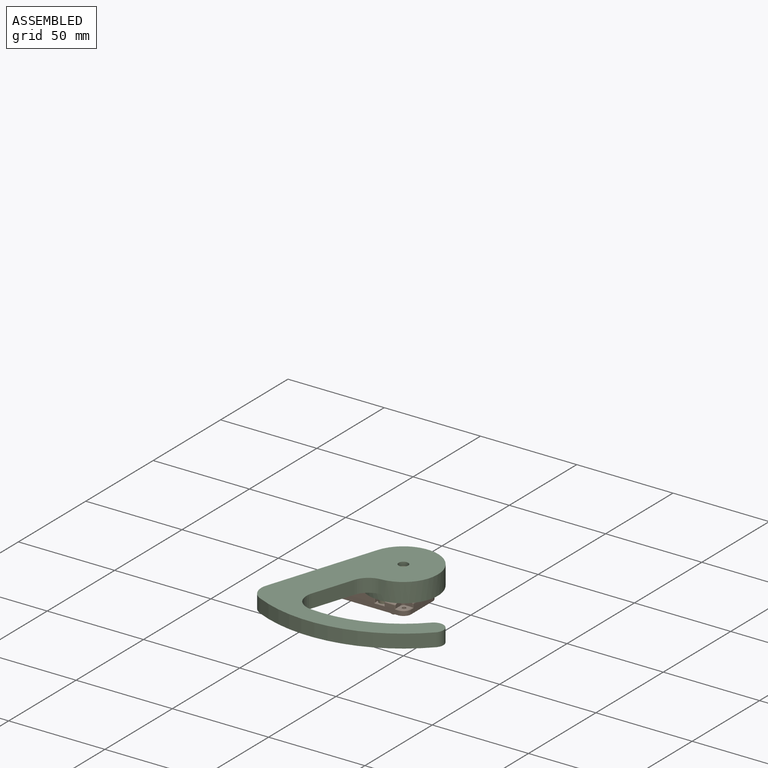
[diagram: assembled view]
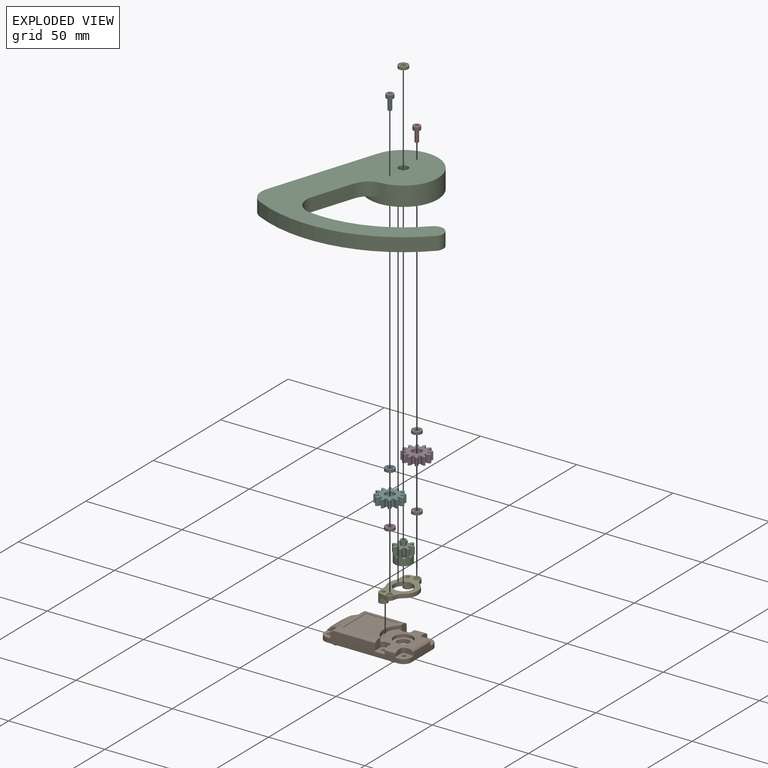
[diagram: exploded view]
GUIDED TOUR — MATED ASSEMBLY (Onshape document 81946194789873d5181b85b1, AutoMate assembly 81946194789873d5181b85b1_256f28a92b45ead868660c09_f54baf32d58786c9b63e995d_default)

This assembly has 13 components, labeled P0..P12 below (a component is one placed occurrence of a part; the same part can appear more than once), held together by 13 mates. A mate is a constraint between two components; its type names the relative motion it leaves free:
  CYLINDRICAL — leaves both rotation about and translation along the listed axis free,
  FASTENED — locks the two components together rigidly (no relative motion),
  REVOLUTE — leaves rotation about the listed axis free (a hinge).
Axis/direction vectors are unit vectors and 'through' points are millimeter coordinates, both in the assembly's world frame.

MATES
  1. REVOLUTE "Revolute 1": P9 <-> P4, axis (0.000, 0.000, -1.000) through (0.00, 10.00, 4.00) mm
  2. REVOLUTE "Revolute 2": P4 <-> P3, axis (0.000, 0.000, 1.000) through (0.00, -10.00, 4.00) mm
  3. REVOLUTE "Revolute 4": P12 <-> P10, axis (0.000, 0.000, -1.000) through (0.00, 0.00, 10.50) mm
  4. FASTENED "Fastened 2": P4 <-> P1, direction (0.000, 0.000, -1.000) through (-4.00, -9.00, -1.30) mm
  5. REVOLUTE "Revolute 3": P1 <-> P10, axis (0.000, 0.000, 1.000) through (0.00, 0.00, 0.00) mm
  6. FASTENED "Fastened 3": P11 <-> P6, direction (0.000, 0.000, 1.000) through (0.00, 10.00, 6.50) mm
  7. FASTENED "Fastened 4": P11 <-> P9, direction (0.000, 0.000, -1.000) through (0.00, 10.00, 5.50) mm
  8. FASTENED "Fastened 8": P0 <-> P8, direction (0.000, 0.000, 1.000) through (0.00, -10.00, 8.00) mm
  9. FASTENED "Fastened 5": P5 <-> P3, direction (0.000, 0.000, -1.000) through (0.00, -10.00, 5.50) mm
  10. CYLINDRICAL "Cylindrical 1": P1 <-> P4, axis (0.000, 0.000, 1.000) through (0.00, 0.00, 0.75) mm
  11. FASTENED "Fastened 6": P5 <-> P0, direction (0.000, 0.000, 1.000) through (0.00, -10.00, 6.50) mm
  12. FASTENED "Fastened 7": P6 <-> P7, direction (0.000, 0.000, 1.000) through (0.00, 10.00, 8.00) mm
  13. FASTENED "Fastened 9": P2 <-> P12, direction (0.000, 0.000, 1.000) through (0.00, 0.00, 10.50) mm

ASSEMBLY ORDER
  1. P4 — the base component [order heuristic]
  2. P1 — core [order heuristic]
  3. P10 — core [order heuristic]
  4. P9 — core [order heuristic]
  5. P3 — core [order heuristic]
  6. P5 — core [order heuristic]
  7. P11 — core [order heuristic]
  8. P0 — core [order heuristic]
  9. P6 — core [order heuristic]
  10. P8 — core [order heuristic]
  11. P7 — core [order heuristic]
  12. P2 — core [order heuristic]
  13. P12 [order verified]
Order-tag legend:
  [order verified] — this step's position reverses a verified removal order: the component was checked to insert without passing through the ones already placed.
  [order heuristic] — the first 12 components form the assembly's core: parts whose collision-free extraction could not be verified, listed in mate-graph order.

Of the 13 components, 2 carry the full construction recipe — the FeatureScript program that regenerates the part's solid from scratch; the rest are supplied as boundary geometry only.
Because this assembly has more than 12 components, the tour below covers the 12 most significant ones individually (every recipe-attached component first, then the largest by part volume), in assembly order; the remaining 1 are summarized together in a grouped section at the end.
Each toured component is shown spotlighted twice — in the assembled view, then in the exploded view, where a leader line traces a displaced component back to its assembled socket (saturated green if recipe-attached, orange if geometry-only; every other component desaturated gray) — followed by its recipe or geometry summary and the mates that hold it.
NOTE — this tour is split across 2 documents so each fits a 32k-token context. This is document 1: the component sections continue in the remaining 1 document, each repeating the header above.
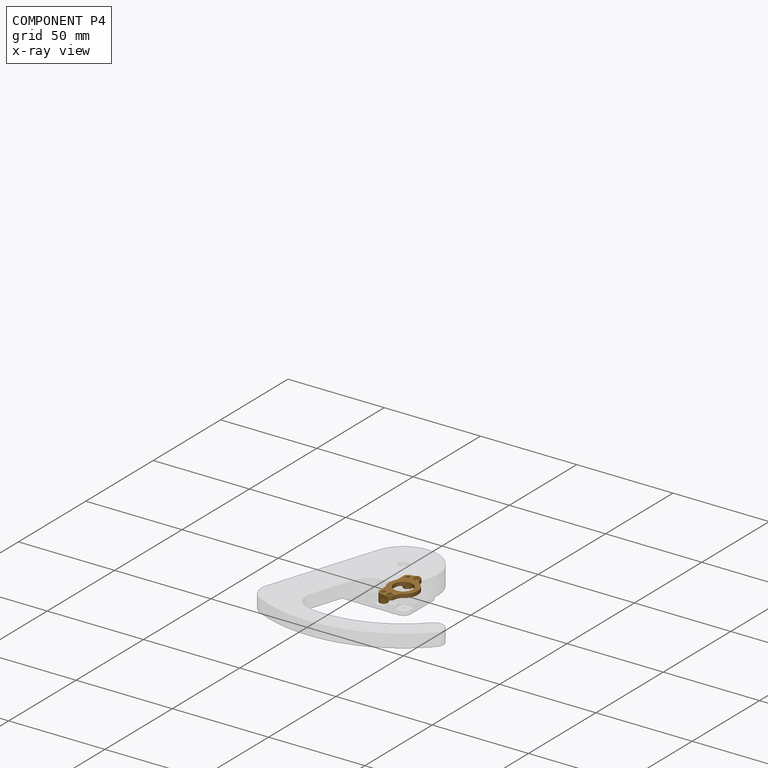
[diagram: component P4 — x-ray view]
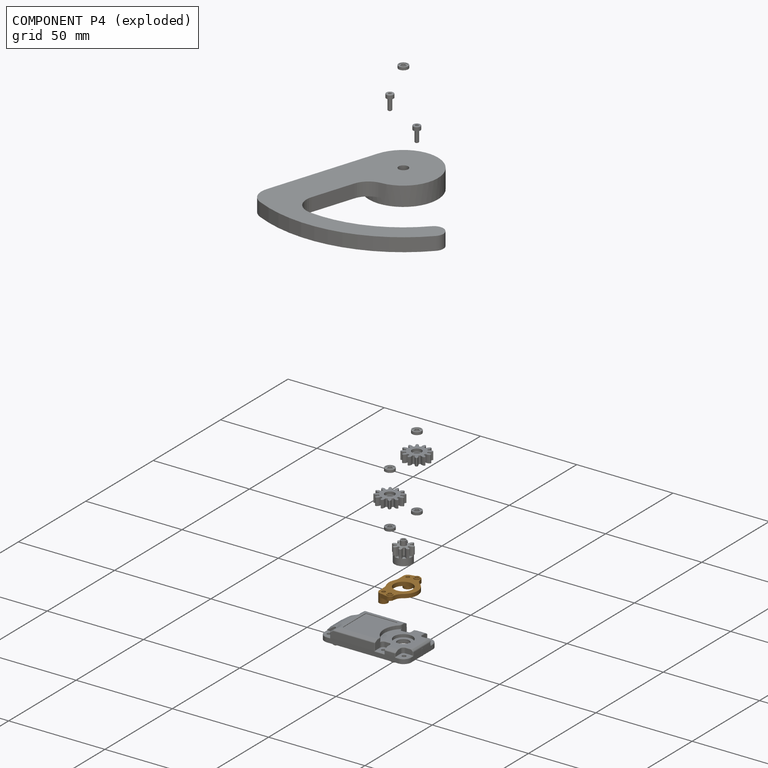
[diagram: component P4 — exploded]
COMPONENT P4 — geometry summary (no construction recipe available for this part):
  bounding box: 24.0 x 15.0 x 5.3 mm
  B-rep topology: 1 solid, 31 faces, 154 edges
  volume: 416 mm^3 (22% of its bounding box)
  symmetry: mirror-symmetric across its y mid-plane
Held by: REVOLUTE mate "Revolute 1" to P9; REVOLUTE mate "Revolute 2" to P3; FASTENED mate "Fastened 2" to P1; CYLINDRICAL mate "Cylindrical 1" to P1.
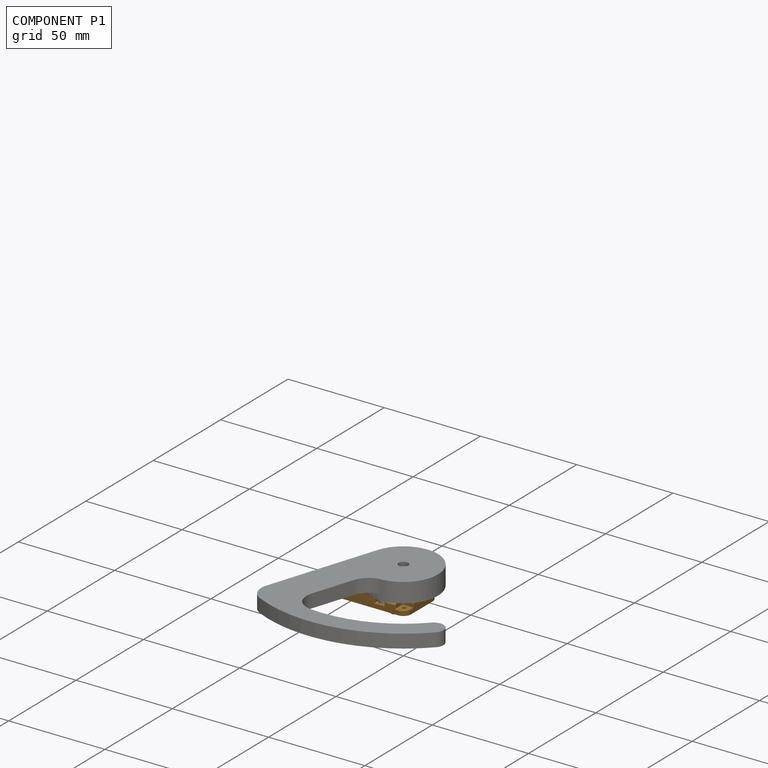
[diagram: component P1 — assembled]
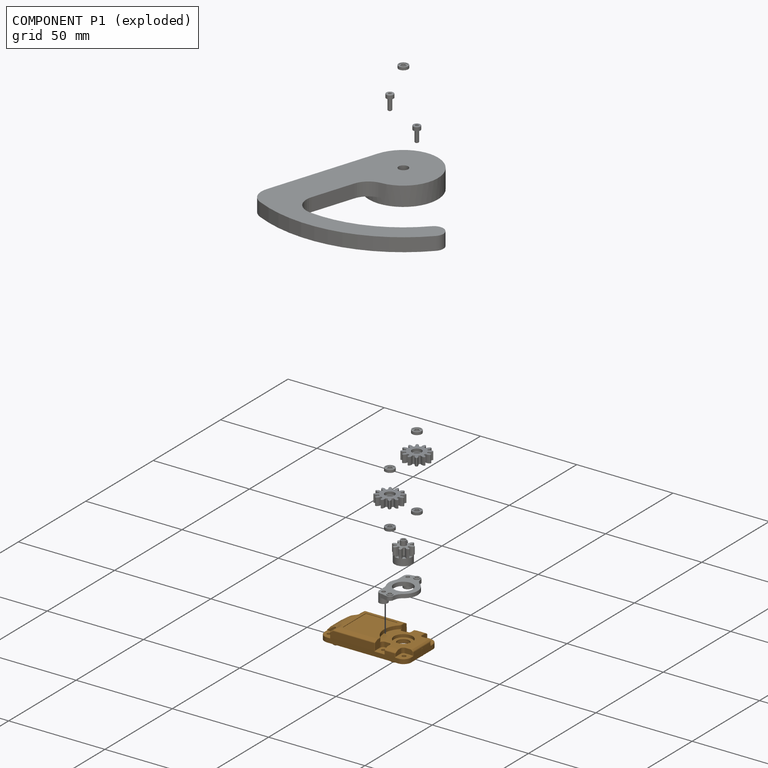
[diagram: component P1 — exploded]
COMPONENT P1 — geometry summary (no construction recipe available for this part):
  bounding box: 45.3 x 24.2 x 8.3 mm
  B-rep topology: 1 solid, 484 faces, 2606 edges
  volume: 2805 mm^3 (31% of its bounding box)
Held by: FASTENED mate "Fastened 2" to P4; REVOLUTE mate "Revolute 3" to P10; CYLINDRICAL mate "Cylindrical 1" to P4.
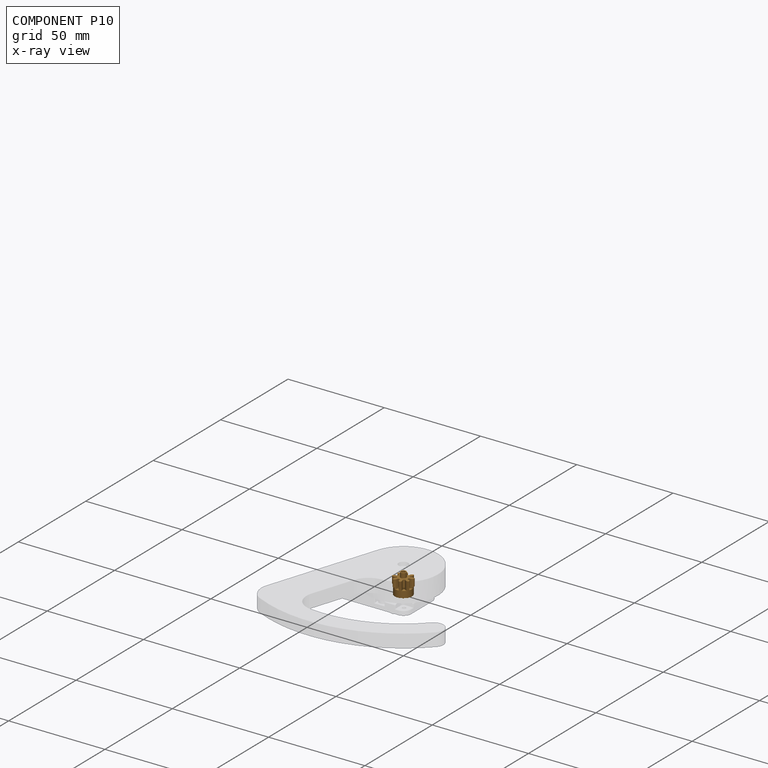
[diagram: component P10 — x-ray view]
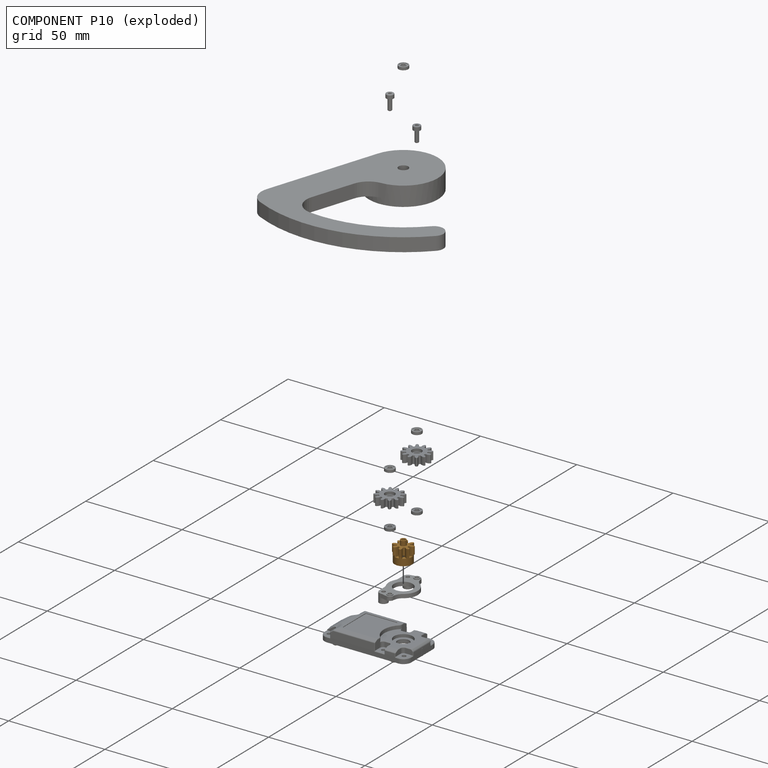
[diagram: component P10 — exploded]
COMPONENT P10 — geometry summary (no construction recipe available for this part):
  bounding box: 10.5 x 10.0 x 10.0 mm
  B-rep topology: 1 solid, 225 faces, 1326 edges
  volume: 325 mm^3 (31% of its bounding box)
Held by: REVOLUTE mate "Revolute 4" to P12; REVOLUTE mate "Revolute 3" to P1.
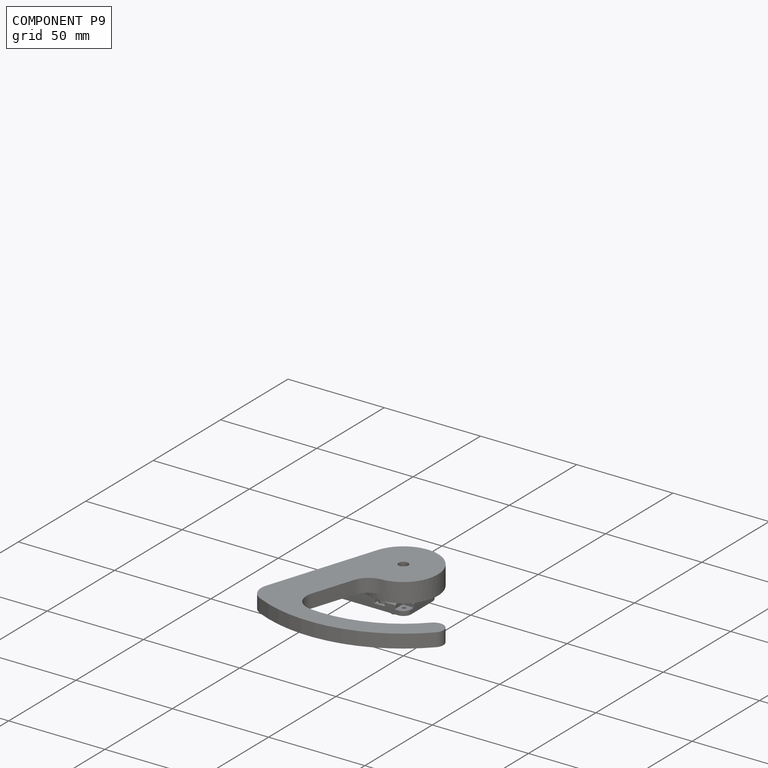
[diagram: component P9 — assembled]
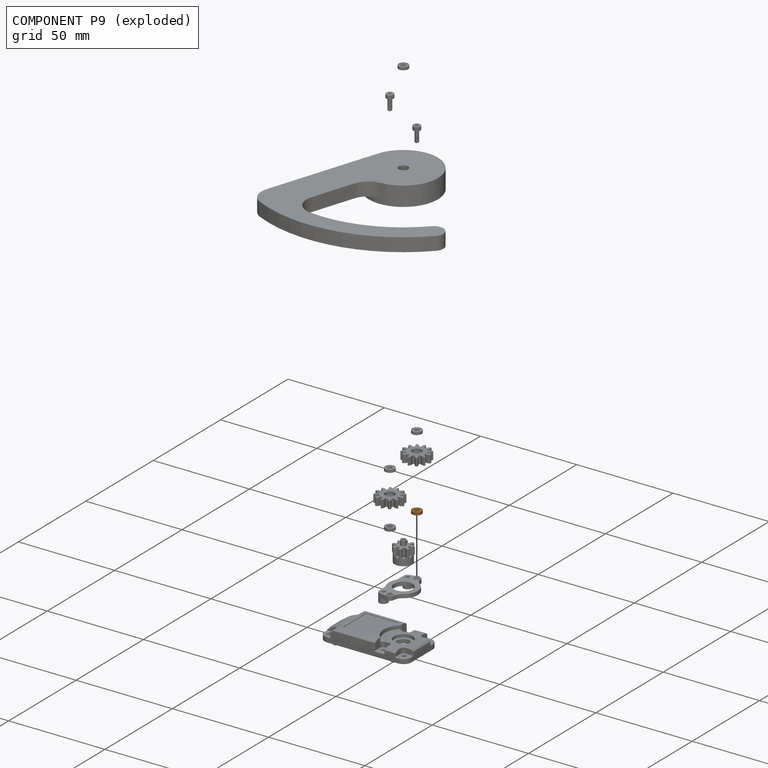
[diagram: component P9 — exploded]
COMPONENT P9 — geometry summary (no construction recipe available for this part):
  bounding box: 5.4 x 5.4 x 1.5 mm
  B-rep topology: 1 solid, 16 faces, 56 edges
  volume: 22 mm^3 (49% of its bounding box)
  symmetry: revolution-symmetric about the x axis through its bounding-box center; 2-fold rotationally symmetric about the y axis; 2-fold rotationally symmetric about the z axis; mirror-symmetric across its x mid-plane, y mid-plane, z mid-plane
Held by: REVOLUTE mate "Revolute 1" to P4; FASTENED mate "Fastened 4" to P11.
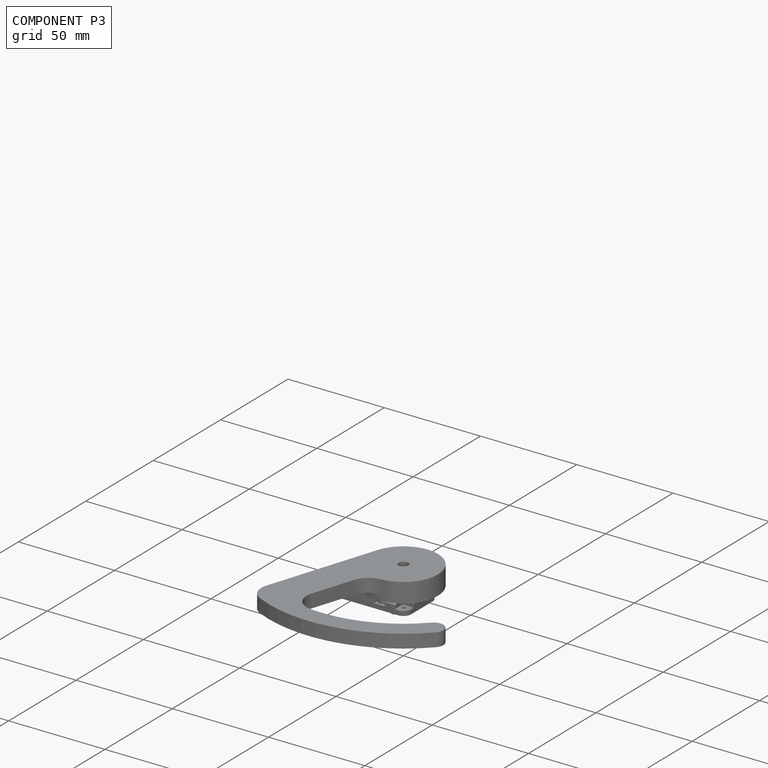
[diagram: component P3 — assembled]
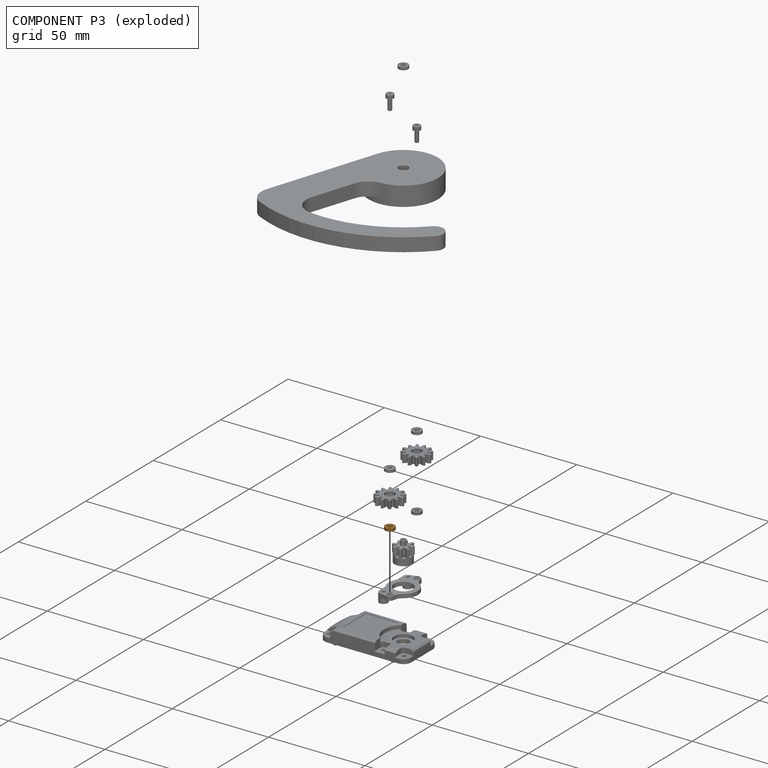
[diagram: component P3 — exploded]
COMPONENT P3 — geometry summary (no construction recipe available for this part):
  bounding box: 5.4 x 5.4 x 1.5 mm
  B-rep topology: 1 solid, 16 faces, 56 edges
  volume: 22 mm^3 (49% of its bounding box)
  symmetry: revolution-symmetric about the x axis through its bounding-box center; 2-fold rotationally symmetric about the y axis; 2-fold rotationally symmetric about the z axis; mirror-symmetric across its x mid-plane, y mid-plane, z mid-plane
Held by: REVOLUTE mate "Revolute 2" to P4; FASTENED mate "Fastened 5" to P5.
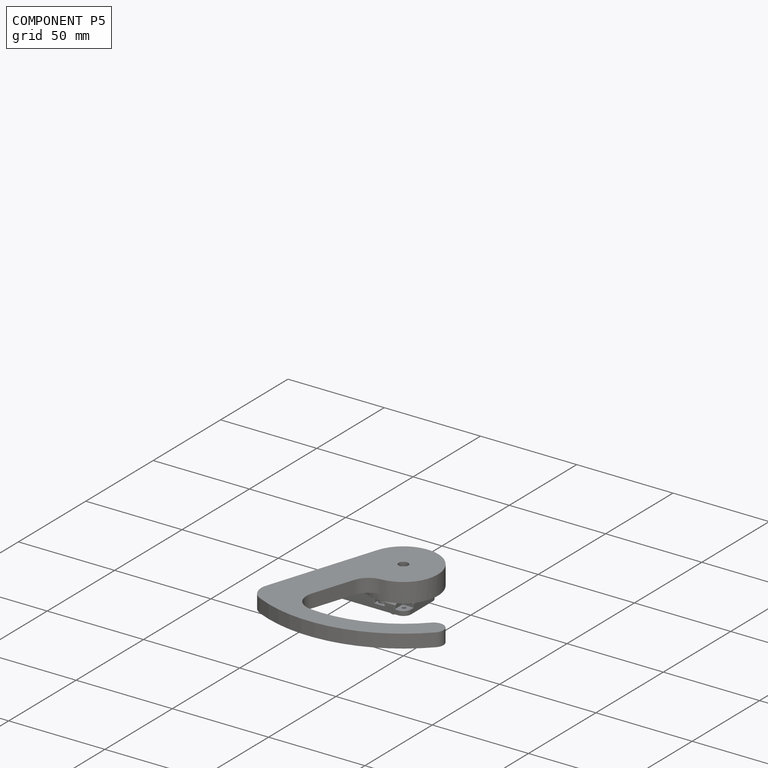
[diagram: component P5 — assembled]
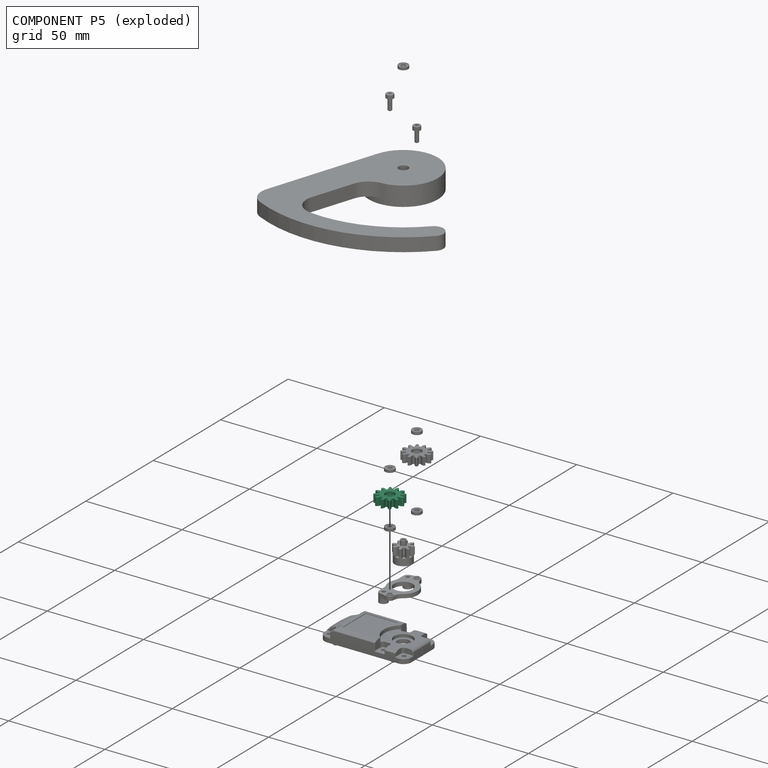
[diagram: component P5 — exploded]
COMPONENT P5 — recipe-attached (CADFS 00911097, mesh-verified: the recipe's output STEP matches this component's geometry to below the mesh-comparison resolution (tessellation chordal tolerance ~0.0296 mm)).
Held by: FASTENED mate "Fastened 5" to P3; FASTENED mate "Fastened 6" to P0.
Construction recipe (FeatureScript — the CAD program that rebuilds this solid; sketch coordinates are in the units given by the * unit suffixes, e.g. mm):

FeatureScript 1540;
import(path : "onshape/std/geometry.fs", version : "1540.0");
import(path : "onshape/std/common.fs", version : "1540.0");
const mm = millimeter;
const VERTEX = EntityType.VERTEX;
const EDGE = EntityType.EDGE;
const FACE = EntityType.FACE;
const BODY = EntityType.BODY;
function v(x, y){return vector(x, y);}
function OD(order){return orderDisambiguation(order);}
function OSD(set){return originalSetDisambiguation(set);}
function TD(topology){return topologyDisambiguation(topology);}
function TDD(query){return trueDependencyDisambiguation(query);}
function sQuery(a, b, c) {return sketchEntityQuery(a, b, c);}

annotation { "Feature Type Name" : "Feature", "Feature Type Description" : "" }
export const myFeature = defineFeature(function(context is Context, id is Id, definition is map)
    precondition{}
    {
        {
            var Q0;
            Q0=qCreatedBy(makeId("Top.planeOp"),FACE);
            var sketch = newSketch(context, id + "F0", { "sketchPlane" : qUnion([Q0])});
            skLineSegment(sketch, "E0", {"start": v(4.75, 0) * mm, "end": v(4.72, 0.55) * mm});
            skLineSegment(sketch, "E1", {"start": v(4.72, 0.55) * mm, "end": v(5.17, 0.6) * mm});
            skLineSegment(sketch, "E2", {"start": v(5.17, 0.6) * mm, "end": v(5.61, 0.65) * mm});
            skLineSegment(sketch, "E3", {"start": v(5.61, 0.65) * mm, "end": v(6.04, 0.84) * mm});
            skLineSegment(sketch, "E4", {"start": v(6.04, 0.84) * mm, "end": v(6.45, 1.13) * mm});
            skLineSegment(sketch, "E5", {"start": v(6.45, 1.13) * mm, "end": v(6.84, 1.51) * mm});
            skLineSegment(sketch, "E6", {"start": v(6.84, 1.51) * mm, "end": v(6.76, 1.81) * mm});
            skLineSegment(sketch, "E7", {"start": v(6.76, 1.81) * mm, "end": v(6.67, 2.1) * mm});
            skLineSegment(sketch, "E8", {"start": v(6.67, 2.1) * mm, "end": v(6.15, 2.25) * mm});
            skLineSegment(sketch, "E9", {"start": v(6.15, 2.25) * mm, "end": v(5.65, 2.3) * mm});
            skLineSegment(sketch, "E10", {"start": v(5.65, 2.3) * mm, "end": v(5.19, 2.24) * mm});
            skLineSegment(sketch, "E11", {"start": v(5.19, 2.24) * mm, "end": v(4.77, 2.06) * mm});
            skLineSegment(sketch, "E12", {"start": v(4.77, 2.06) * mm, "end": v(4.36, 1.88) * mm});
            skLineSegment(sketch, "E13", {"start": v(4.36, 1.88) * mm, "end": v(4.11, 2.38) * mm});
            skLineSegment(sketch, "E14", {"start": v(4.11, 2.38) * mm, "end": v(3.81, 2.84) * mm});
            skLineSegment(sketch, "E15", {"start": v(3.81, 2.84) * mm, "end": v(4.17, 3.1) * mm});
            skLineSegment(sketch, "E16", {"start": v(4.17, 3.1) * mm, "end": v(4.53, 3.37) * mm});
            skLineSegment(sketch, "E17", {"start": v(4.53, 3.37) * mm, "end": v(4.82, 3.74) * mm});
            skLineSegment(sketch, "E18", {"start": v(4.82, 3.74) * mm, "end": v(5.02, 4.2) * mm});
            skLineSegment(sketch, "E19", {"start": v(5.02, 4.2) * mm, "end": v(5.16, 4.73) * mm});
            skLineSegment(sketch, "E20", {"start": v(5.16, 4.73) * mm, "end": v(4.95, 4.95) * mm});
            skLineSegment(sketch, "E21", {"start": v(4.95, 4.95) * mm, "end": v(4.73, 5.16) * mm});
            skLineSegment(sketch, "E22", {"start": v(4.73, 5.16) * mm, "end": v(4.2, 5.02) * mm});
            skLineSegment(sketch, "E23", {"start": v(4.2, 5.02) * mm, "end": v(3.74, 4.82) * mm});
            skLineSegment(sketch, "E24", {"start": v(3.74, 4.82) * mm, "end": v(3.37, 4.53) * mm});
            skLineSegment(sketch, "E25", {"start": v(3.37, 4.53) * mm, "end": v(3.1, 4.17) * mm});
            skLineSegment(sketch, "E26", {"start": v(3.1, 4.17) * mm, "end": v(2.84, 3.81) * mm});
            skLineSegment(sketch, "E27", {"start": v(2.84, 3.81) * mm, "end": v(2.38, 4.11) * mm});
            skLineSegment(sketch, "E28", {"start": v(2.38, 4.11) * mm, "end": v(1.88, 4.36) * mm});
            skLineSegment(sketch, "E29", {"start": v(1.88, 4.36) * mm, "end": v(2.06, 4.77) * mm});
            skLineSegment(sketch, "E30", {"start": v(2.06, 4.77) * mm, "end": v(2.24, 5.19) * mm});
            skLineSegment(sketch, "E31", {"start": v(2.24, 5.19) * mm, "end": v(2.3, 5.65) * mm});
            skLineSegment(sketch, "E32", {"start": v(2.3, 5.65) * mm, "end": v(2.25, 6.15) * mm});
            skLineSegment(sketch, "E33", {"start": v(2.25, 6.15) * mm, "end": v(2.1, 6.67) * mm});
            skLineSegment(sketch, "E34", {"start": v(2.1, 6.67) * mm, "end": v(1.81, 6.76) * mm});
            skLineSegment(sketch, "E35", {"start": v(1.81, 6.76) * mm, "end": v(1.51, 6.84) * mm});
            skLineSegment(sketch, "E36", {"start": v(1.51, 6.84) * mm, "end": v(1.13, 6.45) * mm});
            skLineSegment(sketch, "E37", {"start": v(1.13, 6.45) * mm, "end": v(0.84, 6.04) * mm});
            skLineSegment(sketch, "E38", {"start": v(0.84, 6.04) * mm, "end": v(0.65, 5.61) * mm});
            skLineSegment(sketch, "E39", {"start": v(0.65, 5.61) * mm, "end": v(0.6, 5.17) * mm});
            skLineSegment(sketch, "E40", {"start": v(0.6, 5.17) * mm, "end": v(0.55, 4.72) * mm});
            skLineSegment(sketch, "E41", {"start": v(0.55, 4.72) * mm, "end": v(0, 4.75) * mm});
            skLineSegment(sketch, "E42", {"start": v(0, 4.75) * mm, "end": v(-0.55, 4.72) * mm});
            skLineSegment(sketch, "E43", {"start": v(-0.55, 4.72) * mm, "end": v(-0.6, 5.17) * mm});
            skLineSegment(sketch, "E44", {"start": v(-0.6, 5.17) * mm, "end": v(-0.65, 5.61) * mm});
            skLineSegment(sketch, "E45", {"start": v(-0.65, 5.61) * mm, "end": v(-0.84, 6.04) * mm});
            skLineSegment(sketch, "E46", {"start": v(-0.84, 6.04) * mm, "end": v(-1.13, 6.45) * mm});
            skLineSegment(sketch, "E47", {"start": v(-1.13, 6.45) * mm, "end": v(-1.51, 6.84) * mm});
            skLineSegment(sketch, "E48", {"start": v(-1.51, 6.84) * mm, "end": v(-1.81, 6.76) * mm});
            skLineSegment(sketch, "E49", {"start": v(-1.81, 6.76) * mm, "end": v(-2.1, 6.67) * mm});
            skLineSegment(sketch, "E50", {"start": v(-2.1, 6.67) * mm, "end": v(-2.25, 6.15) * mm});
            skLineSegment(sketch, "E51", {"start": v(-2.25, 6.15) * mm, "end": v(-2.3, 5.65) * mm});
            skLineSegment(sketch, "E52", {"start": v(-2.3, 5.65) * mm, "end": v(-2.24, 5.19) * mm});
            skLineSegment(sketch, "E53", {"start": v(-2.24, 5.19) * mm, "end": v(-2.06, 4.77) * mm});
            skLineSegment(sketch, "E54", {"start": v(-2.06, 4.77) * mm, "end": v(-1.88, 4.36) * mm});
            skLineSegment(sketch, "E55", {"start": v(-1.88, 4.36) * mm, "end": v(-2.38, 4.11) * mm});
            skLineSegment(sketch, "E56", {"start": v(-2.38, 4.11) * mm, "end": v(-2.84, 3.81) * mm});
            skLineSegment(sketch, "E57", {"start": v(-2.84, 3.81) * mm, "end": v(-3.1, 4.17) * mm});
            skLineSegment(sketch, "E58", {"start": v(-3.1, 4.17) * mm, "end": v(-3.37, 4.53) * mm});
            skLineSegment(sketch, "E59", {"start": v(-3.37, 4.53) * mm, "end": v(-3.74, 4.82) * mm});
            skLineSegment(sketch, "E60", {"start": v(-3.74, 4.82) * mm, "end": v(-4.2, 5.02) * mm});
            skLineSegment(sketch, "E61", {"start": v(-4.2, 5.02) * mm, "end": v(-4.73, 5.16) * mm});
            skLineSegment(sketch, "E62", {"start": v(-4.73, 5.16) * mm, "end": v(-4.95, 4.95) * mm});
            skLineSegment(sketch, "E63", {"start": v(-4.95, 4.95) * mm, "end": v(-5.16, 4.73) * mm});
            skLineSegment(sketch, "E64", {"start": v(-5.16, 4.73) * mm, "end": v(-5.02, 4.2) * mm});
            skLineSegment(sketch, "E65", {"start": v(-5.02, 4.2) * mm, "end": v(-4.82, 3.74) * mm});
            skLineSegment(sketch, "E66", {"start": v(-4.82, 3.74) * mm, "end": v(-4.53, 3.37) * mm});
            skLineSegment(sketch, "E67", {"start": v(-4.53, 3.37) * mm, "end": v(-4.17, 3.1) * mm});
            skLineSegment(sketch, "E68", {"start": v(-4.17, 3.1) * mm, "end": v(-3.81, 2.84) * mm});
            skLineSegment(sketch, "E69", {"start": v(-3.81, 2.84) * mm, "end": v(-4.11, 2.38) * mm});
            skLineSegment(sketch, "E70", {"start": v(-4.11, 2.38) * mm, "end": v(-4.36, 1.88) * mm});
            skLineSegment(sketch, "E71", {"start": v(-4.36, 1.88) * mm, "end": v(-4.77, 2.06) * mm});
            skLineSegment(sketch, "E72", {"start": v(-4.77, 2.06) * mm, "end": v(-5.19, 2.24) * mm});
            skLineSegment(sketch, "E73", {"start": v(-5.19, 2.24) * mm, "end": v(-5.65, 2.3) * mm});
            skLineSegment(sketch, "E74", {"start": v(-5.65, 2.3) * mm, "end": v(-6.15, 2.25) * mm});
            skLineSegment(sketch, "E75", {"start": v(-6.15, 2.25) * mm, "end": v(-6.67, 2.1) * mm});
            skLineSegment(sketch, "E76", {"start": v(-6.67, 2.1) * mm, "end": v(-6.76, 1.81) * mm});
            skLineSegment(sketch, "E77", {"start": v(-6.76, 1.81) * mm, "end": v(-6.84, 1.51) * mm});
            skLineSegment(sketch, "E78", {"start": v(-6.84, 1.51) * mm, "end": v(-6.45, 1.13) * mm});
            skLineSegment(sketch, "E79", {"start": v(-6.45, 1.13) * mm, "end": v(-6.04, 0.84) * mm});
            skLineSegment(sketch, "E80", {"start": v(-6.04, 0.84) * mm, "end": v(-5.61, 0.65) * mm});
            skLineSegment(sketch, "E81", {"start": v(-5.61, 0.65) * mm, "end": v(-5.17, 0.6) * mm});
            skLineSegment(sketch, "E82", {"start": v(-5.17, 0.6) * mm, "end": v(-4.72, 0.55) * mm});
            skLineSegment(sketch, "E83", {"start": v(-4.72, 0.55) * mm, "end": v(-4.75, 0) * mm});
            skLineSegment(sketch, "E84", {"start": v(-4.75, 0) * mm, "end": v(-4.72, -0.55) * mm});
            skLineSegment(sketch, "E85", {"start": v(-4.72, -0.55) * mm, "end": v(-5.17, -0.6) * mm});
            skLineSegment(sketch, "E86", {"start": v(-5.17, -0.6) * mm, "end": v(-5.61, -0.65) * mm});
            skLineSegment(sketch, "E87", {"start": v(-5.61, -0.65) * mm, "end": v(-6.04, -0.84) * mm});
            skLineSegment(sketch, "E88", {"start": v(-6.04, -0.84) * mm, "end": v(-6.45, -1.13) * mm});
            skLineSegment(sketch, "E89", {"start": v(-6.45, -1.13) * mm, "end": v(-6.84, -1.51) * mm});
            skLineSegment(sketch, "E90", {"start": v(-6.84, -1.51) * mm, "end": v(-6.76, -1.81) * mm});
            skLineSegment(sketch, "E91", {"start": v(-6.76, -1.81) * mm, "end": v(-6.67, -2.1) * mm});
            skLineSegment(sketch, "E92", {"start": v(-6.67, -2.1) * mm, "end": v(-6.15, -2.25) * mm});
            skLineSegment(sketch, "E93", {"start": v(-6.15, -2.25) * mm, "end": v(-5.65, -2.3) * mm});
            skLineSegment(sketch, "E94", {"start": v(-5.65, -2.3) * mm, "end": v(-5.19, -2.24) * mm});
            skLineSegment(sketch, "E95", {"start": v(-5.19, -2.24) * mm, "end": v(-4.77, -2.06) * mm});
            skLineSegment(sketch, "E96", {"start": v(-4.77, -2.06) * mm, "end": v(-4.36, -1.88) * mm});
            skLineSegment(sketch, "E97", {"start": v(-4.36, -1.88) * mm, "end": v(-4.11, -2.38) * mm});
            skLineSegment(sketch, "E98", {"start": v(-4.11, -2.38) * mm, "end": v(-3.81, -2.84) * mm});
            skLineSegment(sketch, "E99", {"start": v(-3.81, -2.84) * mm, "end": v(-4.17, -3.1) * mm});
            skLineSegment(sketch, "E100", {"start": v(-4.17, -3.1) * mm, "end": v(-4.53, -3.37) * mm});
            skLineSegment(sketch, "E101", {"start": v(-4.53, -3.37) * mm, "end": v(-4.82, -3.74) * mm});
            skLineSegment(sketch, "E102", {"start": v(-4.82, -3.74) * mm, "end": v(-5.02, -4.2) * mm});
            skLineSegment(sketch, "E103", {"start": v(-5.02, -4.2) * mm, "end": v(-5.16, -4.73) * mm});
            skLineSegment(sketch, "E104", {"start": v(-5.16, -4.73) * mm, "end": v(-4.95, -4.95) * mm});
            skLineSegment(sketch, "E105", {"start": v(-4.95, -4.95) * mm, "end": v(-4.73, -5.16) * mm});
            skLineSegment(sketch, "E106", {"start": v(-4.73, -5.16) * mm, "end": v(-4.2, -5.02) * mm});
            skLineSegment(sketch, "E107", {"start": v(-4.2, -5.02) * mm, "end": v(-3.74, -4.82) * mm});
            skLineSegment(sketch, "E108", {"start": v(-3.74, -4.82) * mm, "end": v(-3.37, -4.53) * mm});
            skLineSegment(sketch, "E109", {"start": v(-3.37, -4.53) * mm, "end": v(-3.1, -4.17) * mm});
            skLineSegment(sketch, "E110", {"start": v(-3.1, -4.17) * mm, "end": v(-2.84, -3.81) * mm});
            skLineSegment(sketch, "E111", {"start": v(-2.84, -3.81) * mm, "end": v(-2.38, -4.11) * mm});
            skLineSegment(sketch, "E112", {"start": v(-2.38, -4.11) * mm, "end": v(-1.88, -4.36) * mm});
            skLineSegment(sketch, "E113", {"start": v(-1.88, -4.36) * mm, "end": v(-2.06, -4.77) * mm});
            skLineSegment(sketch, "E114", {"start": v(-2.06, -4.77) * mm, "end": v(-2.24, -5.19) * mm});
            skLineSegment(sketch, "E115", {"start": v(-2.24, -5.19) * mm, "end": v(-2.3, -5.65) * mm});
            skLineSegment(sketch, "E116", {"start": v(-2.3, -5.65) * mm, "end": v(-2.25, -6.15) * mm});
            skLineSegment(sketch, "E117", {"start": v(-2.25, -6.15) * mm, "end": v(-2.1, -6.67) * mm});
            skLineSegment(sketch, "E118", {"start": v(-2.1, -6.67) * mm, "end": v(-1.81, -6.76) * mm});
            skLineSegment(sketch, "E119", {"start": v(-1.81, -6.76) * mm, "end": v(-1.51, -6.84) * mm});
            skLineSegment(sketch, "E120", {"start": v(-1.51, -6.84) * mm, "end": v(-1.13, -6.45) * mm});
            skLineSegment(sketch, "E121", {"start": v(-1.13, -6.45) * mm, "end": v(-0.84, -6.04) * mm});
            skLineSegment(sketch, "E122", {"start": v(-0.84, -6.04) * mm, "end": v(-0.65, -5.61) * mm});
            skLineSegment(sketch, "E123", {"start": v(-0.65, -5.61) * mm, "end": v(-0.6, -5.17) * mm});
            skLineSegment(sketch, "E124", {"start": v(-0.6, -5.17) * mm, "end": v(-0.55, -4.72) * mm});
            skLineSegment(sketch, "E125", {"start": v(-0.55, -4.72) * mm, "end": v(0, -4.75) * mm});
            skLineSegment(sketch, "E126", {"start": v(0, -4.75) * mm, "end": v(0.55, -4.72) * mm});
            skLineSegment(sketch, "E127", {"start": v(0.55, -4.72) * mm, "end": v(0.6, -5.17) * mm});
            skLineSegment(sketch, "E128", {"start": v(0.6, -5.17) * mm, "end": v(0.65, -5.61) * mm});
            skLineSegment(sketch, "E129", {"start": v(0.65, -5.61) * mm, "end": v(0.84, -6.04) * mm});
            skLineSegment(sketch, "E130", {"start": v(0.84, -6.04) * mm, "end": v(1.13, -6.45) * mm});
            skLineSegment(sketch, "E131", {"start": v(1.13, -6.45) * mm, "end": v(1.51, -6.84) * mm});
            skLineSegment(sketch, "E132", {"start": v(1.51, -6.84) * mm, "end": v(1.81, -6.76) * mm});
            skLineSegment(sketch, "E133", {"start": v(1.81, -6.76) * mm, "end": v(2.1, -6.67) * mm});
            skLineSegment(sketch, "E134", {"start": v(2.1, -6.67) * mm, "end": v(2.25, -6.15) * mm});
            skLineSegment(sketch, "E135", {"start": v(2.25, -6.15) * mm, "end": v(2.3, -5.65) * mm});
            skLineSegment(sketch, "E136", {"start": v(2.3, -5.65) * mm, "end": v(2.24, -5.19) * mm});
            skLineSegment(sketch, "E137", {"start": v(2.24, -5.19) * mm, "end": v(2.06, -4.77) * mm});
            skLineSegment(sketch, "E138", {"start": v(2.06, -4.77) * mm, "end": v(1.88, -4.36) * mm});
            skLineSegment(sketch, "E139", {"start": v(1.88, -4.36) * mm, "end": v(2.38, -4.11) * mm});
            skLineSegment(sketch, "E140", {"start": v(2.38, -4.11) * mm, "end": v(2.84, -3.81) * mm});
            skLineSegment(sketch, "E141", {"start": v(2.84, -3.81) * mm, "end": v(3.1, -4.17) * mm});
            skLineSegment(sketch, "E142", {"start": v(3.1, -4.17) * mm, "end": v(3.37, -4.53) * mm});
            skLineSegment(sketch, "E143", {"start": v(3.37, -4.53) * mm, "end": v(3.74, -4.82) * mm});
            skLineSegment(sketch, "E144", {"start": v(3.74, -4.82) * mm, "end": v(4.2, -5.02) * mm});
            skLineSegment(sketch, "E145", {"start": v(4.2, -5.02) * mm, "end": v(4.73, -5.16) * mm});
            skLineSegment(sketch, "E146", {"start": v(4.73, -5.16) * mm, "end": v(4.95, -4.95) * mm});
            skLineSegment(sketch, "E147", {"start": v(4.95, -4.95) * mm, "end": v(5.16, -4.73) * mm});
            skLineSegment(sketch, "E148", {"start": v(5.16, -4.73) * mm, "end": v(5.02, -4.2) * mm});
            skLineSegment(sketch, "E149", {"start": v(5.02, -4.2) * mm, "end": v(4.82, -3.74) * mm});
            skLineSegment(sketch, "E150", {"start": v(4.82, -3.74) * mm, "end": v(4.53, -3.37) * mm});
            skLineSegment(sketch, "E151", {"start": v(4.53, -3.37) * mm, "end": v(4.17, -3.1) * mm});
            skLineSegment(sketch, "E152", {"start": v(4.17, -3.1) * mm, "end": v(3.81, -2.84) * mm});
            skLineSegment(sketch, "E153", {"start": v(3.81, -2.84) * mm, "end": v(4.11, -2.38) * mm});
            skLineSegment(sketch, "E154", {"start": v(4.11, -2.38) * mm, "end": v(4.36, -1.88) * mm});
            skLineSegment(sketch, "E155", {"start": v(4.36, -1.88) * mm, "end": v(4.77, -2.06) * mm});
            skLineSegment(sketch, "E156", {"start": v(4.77, -2.06) * mm, "end": v(5.19, -2.24) * mm});
            skLineSegment(sketch, "E157", {"start": v(5.19, -2.24) * mm, "end": v(5.65, -2.3) * mm});
            skLineSegment(sketch, "E158", {"start": v(5.65, -2.3) * mm, "end": v(6.15, -2.25) * mm});
            skLineSegment(sketch, "E159", {"start": v(6.15, -2.25) * mm, "end": v(6.67, -2.1) * mm});
            skLineSegment(sketch, "E160", {"start": v(6.67, -2.1) * mm, "end": v(6.76, -1.81) * mm});
            skLineSegment(sketch, "E161", {"start": v(6.76, -1.81) * mm, "end": v(6.84, -1.51) * mm});
            skLineSegment(sketch, "E162", {"start": v(6.84, -1.51) * mm, "end": v(6.45, -1.13) * mm});
            skLineSegment(sketch, "E163", {"start": v(6.45, -1.13) * mm, "end": v(6.04, -0.84) * mm});
            skLineSegment(sketch, "E164", {"start": v(6.04, -0.84) * mm, "end": v(5.61, -0.65) * mm});
            skLineSegment(sketch, "E165", {"start": v(5.61, -0.65) * mm, "end": v(5.17, -0.6) * mm});
            skLineSegment(sketch, "E166", {"start": v(5.17, -0.6) * mm, "end": v(4.72, -0.55) * mm});
            skLineSegment(sketch, "E167", {"start": v(4.75, 0) * mm, "end": v(4.72, -0.55) * mm});
            skCircle(sketch, "E168", {"center": v(0, 0) * mm, "radius": 7 * mm, "construction": true});
            skCircle(sketch, "E169", {"center": v(0, 0) * mm, "radius": 2 * mm});
            skSolve(sketch);
        }
        {
            var Q0;
            Q0 = qSketchRegion(id + "F0", true);
            extrude(context, id + "F1", {"entities" : qUnion([Q0]), "depth" : 4 * mm, "offsetDistance" : 25 * mm});
        }
        {
            var Q0;
            Q0=makeQuery(id+"F1.opExtrude","CAP_FACE",FACE,{"disambiguationData":[OSD([sQuery(id+"F0.wireOp",EDGE,"E0"),sQuery(id+"F0.wireOp",EDGE,"E1"),sQuery(id+"F0.wireOp",EDGE,"E2"),sQuery(id+"F0.wireOp",EDGE,"E3"),sQuery(id+"F0.wireOp",EDGE,"E4"),sQuery(id+"F0.wireOp",EDGE,"E5"),sQuery(id+"F0.wireOp",EDGE,"E6"),sQuery(id+"F0.wireOp",EDGE,"E7"),sQuery(id+"F0.wireOp",EDGE,"E8"),sQuery(id+"F0.wireOp",EDGE,"E9"),sQuery(id+"F0.wireOp",EDGE,"E10"),sQuery(id+"F0.wireOp",EDGE,"E11"),sQuery(id+"F0.wireOp",EDGE,"E12"),sQuery(id+"F0.wireOp",EDGE,"E13"),sQuery(id+"F0.wireOp",EDGE,"E14"),sQuery(id+"F0.wireOp",EDGE,"E15"),sQuery(id+"F0.wireOp",EDGE,"E16"),sQuery(id+"F0.wireOp",EDGE,"E17"),sQuery(id+"F0.wireOp",EDGE,"E18"),sQuery(id+"F0.wireOp",EDGE,"E19"),sQuery(id+"F0.wireOp",EDGE,"E20"),sQuery(id+"F0.wireOp",EDGE,"E21"),sQuery(id+"F0.wireOp",EDGE,"E22"),sQuery(id+"F0.wireOp",EDGE,"E23"),sQuery(id+"F0.wireOp",EDGE,"E24"),sQuery(id+"F0.wireOp",EDGE,"E25"),sQuery(id+"F0.wireOp",EDGE,"E26"),sQuery(id+"F0.wireOp",EDGE,"E27"),sQuery(id+"F0.wireOp",EDGE,"E28"),sQuery(id+"F0.wireOp",EDGE,"E29"),sQuery(id+"F0.wireOp",EDGE,"E30"),sQuery(id+"F0.wireOp",EDGE,"E31"),sQuery(id+"F0.wireOp",EDGE,"E32"),sQuery(id+"F0.wireOp",EDGE,"E33"),sQuery(id+"F0.wireOp",EDGE,"E34"),sQuery(id+"F0.wireOp",EDGE,"E35"),sQuery(id+"F0.wireOp",EDGE,"E36"),sQuery(id+"F0.wireOp",EDGE,"E37"),sQuery(id+"F0.wireOp",EDGE,"E38"),sQuery(id+"F0.wireOp",EDGE,"E39"),sQuery(id+"F0.wireOp",EDGE,"E40"),sQuery(id+"F0.wireOp",EDGE,"E41"),sQuery(id+"F0.wireOp",EDGE,"E42"),sQuery(id+"F0.wireOp",EDGE,"E43"),sQuery(id+"F0.wireOp",EDGE,"E44"),sQuery(id+"F0.wireOp",EDGE,"E45"),sQuery(id+"F0.wireOp",EDGE,"E46"),sQuery(id+"F0.wireOp",EDGE,"E47"),sQuery(id+"F0.wireOp",EDGE,"E48"),sQuery(id+"F0.wireOp",EDGE,"E49"),sQuery(id+"F0.wireOp",EDGE,"E50"),sQuery(id+"F0.wireOp",EDGE,"E51"),sQuery(id+"F0.wireOp",EDGE,"E52"),sQuery(id+"F0.wireOp",EDGE,"E53"),sQuery(id+"F0.wireOp",EDGE,"E54"),sQuery(id+"F0.wireOp",EDGE,"E55"),sQuery(id+"F0.wireOp",EDGE,"E56"),sQuery(id+"F0.wireOp",EDGE,"E57"),sQuery(id+"F0.wireOp",EDGE,"E58"),sQuery(id+"F0.wireOp",EDGE,"E59"),sQuery(id+"F0.wireOp",EDGE,"E60"),sQuery(id+"F0.wireOp",EDGE,"E61"),sQuery(id+"F0.wireOp",EDGE,"E62"),sQuery(id+"F0.wireOp",EDGE,"E63"),sQuery(id+"F0.wireOp",EDGE,"E64"),sQuery(id+"F0.wireOp",EDGE,"E65"),sQuery(id+"F0.wireOp",EDGE,"E66"),sQuery(id+"F0.wireOp",EDGE,"E67"),sQuery(id+"F0.wireOp",EDGE,"E68"),sQuery(id+"F0.wireOp",EDGE,"E69"),sQuery(id+"F0.wireOp",EDGE,"E70"),sQuery(id+"F0.wireOp",EDGE,"E71"),sQuery(id+"F0.wireOp",EDGE,"E72"),sQuery(id+"F0.wireOp",EDGE,"E73"),sQuery(id+"F0.wireOp",EDGE,"E74"),sQuery(id+"F0.wireOp",EDGE,"E75"),sQuery(id+"F0.wireOp",EDGE,"E76"),sQuery(id+"F0.wireOp",EDGE,"E77"),sQuery(id+"F0.wireOp",EDGE,"E78"),sQuery(id+"F0.wireOp",EDGE,"E79"),sQuery(id+"F0.wireOp",EDGE,"E80"),sQuery(id+"F0.wireOp",EDGE,"E81"),sQuery(id+"F0.wireOp",EDGE,"E82"),sQuery(id+"F0.wireOp",EDGE,"E83"),sQuery(id+"F0.wireOp",EDGE,"E84"),sQuery(id+"F0.wireOp",EDGE,"E85"),sQuery(id+"F0.wireOp",EDGE,"E86"),sQuery(id+"F0.wireOp",EDGE,"E87"),sQuery(id+"F0.wireOp",EDGE,"E88"),sQuery(id+"F0.wireOp",EDGE,"E89"),sQuery(id+"F0.wireOp",EDGE,"E90"),sQuery(id+"F0.wireOp",EDGE,"E91"),sQuery(id+"F0.wireOp",EDGE,"E92"),sQuery(id+"F0.wireOp",EDGE,"E93"),sQuery(id+"F0.wireOp",EDGE,"E94"),sQuery(id+"F0.wireOp",EDGE,"E95"),sQuery(id+"F0.wireOp",EDGE,"E96"),sQuery(id+"F0.wireOp",EDGE,"E97"),sQuery(id+"F0.wireOp",EDGE,"E98"),sQuery(id+"F0.wireOp",EDGE,"E99"),sQuery(id+"F0.wireOp",EDGE,"E100"),sQuery(id+"F0.wireOp",EDGE,"E101"),sQuery(id+"F0.wireOp",EDGE,"E102"),sQuery(id+"F0.wireOp",EDGE,"E103"),sQuery(id+"F0.wireOp",EDGE,"E104"),sQuery(id+"F0.wireOp",EDGE,"E105"),sQuery(id+"F0.wireOp",EDGE,"E106"),sQuery(id+"F0.wireOp",EDGE,"E107"),sQuery(id+"F0.wireOp",EDGE,"E108"),sQuery(id+"F0.wireOp",EDGE,"E109"),sQuery(id+"F0.wireOp",EDGE,"E110"),sQuery(id+"F0.wireOp",EDGE,"E111"),sQuery(id+"F0.wireOp",EDGE,"E112"),sQuery(id+"F0.wireOp",EDGE,"E113"),sQuery(id+"F0.wireOp",EDGE,"E114"),sQuery(id+"F0.wireOp",EDGE,"E115"),sQuery(id+"F0.wireOp",EDGE,"E116"),sQuery(id+"F0.wireOp",EDGE,"E117"),sQuery(id+"F0.wireOp",EDGE,"E118"),sQuery(id+"F0.wireOp",EDGE,"E119"),sQuery(id+"F0.wireOp",EDGE,"E120"),sQuery(id+"F0.wireOp",EDGE,"E121"),sQuery(id+"F0.wireOp",EDGE,"E122"),sQuery(id+"F0.wireOp",EDGE,"E123"),sQuery(id+"F0.wireOp",EDGE,"E124"),sQuery(id+"F0.wireOp",EDGE,"E125"),sQuery(id+"F0.wireOp",EDGE,"E126"),sQuery(id+"F0.wireOp",EDGE,"E127"),sQuery(id+"F0.wireOp",EDGE,"E128"),sQuery(id+"F0.wireOp",EDGE,"E129"),sQuery(id+"F0.wireOp",EDGE,"E130"),sQuery(id+"F0.wireOp",EDGE,"E131"),sQuery(id+"F0.wireOp",EDGE,"E132"),sQuery(id+"F0.wireOp",EDGE,"E133"),sQuery(id+"F0.wireOp",EDGE,"E134"),sQuery(id+"F0.wireOp",EDGE,"E135"),sQuery(id+"F0.wireOp",EDGE,"E136"),sQuery(id+"F0.wireOp",EDGE,"E137"),sQuery(id+"F0.wireOp",EDGE,"E138"),sQuery(id+"F0.wireOp",EDGE,"E139"),sQuery(id+"F0.wireOp",EDGE,"E140"),sQuery(id+"F0.wireOp",EDGE,"E141"),sQuery(id+"F0.wireOp",EDGE,"E142"),sQuery(id+"F0.wireOp",EDGE,"E143"),sQuery(id+"F0.wireOp",EDGE,"E144"),sQuery(id+"F0.wireOp",EDGE,"E145"),sQuery(id+"F0.wireOp",EDGE,"E146"),sQuery(id+"F0.wireOp",EDGE,"E147"),sQuery(id+"F0.wireOp",EDGE,"E148"),sQuery(id+"F0.wireOp",EDGE,"E149"),sQuery(id+"F0.wireOp",EDGE,"E150"),sQuery(id+"F0.wireOp",EDGE,"E151"),sQuery(id+"F0.wireOp",EDGE,"E152"),sQuery(id+"F0.wireOp",EDGE,"E153"),sQuery(id+"F0.wireOp",EDGE,"E154"),sQuery(id+"F0.wireOp",EDGE,"E155"),sQuery(id+"F0.wireOp",EDGE,"E156"),sQuery(id+"F0.wireOp",EDGE,"E157"),sQuery(id+"F0.wireOp",EDGE,"E158"),sQuery(id+"F0.wireOp",EDGE,"E159"),sQuery(id+"F0.wireOp",EDGE,"E160"),sQuery(id+"F0.wireOp",EDGE,"E161"),sQuery(id+"F0.wireOp",EDGE,"E162"),sQuery(id+"F0.wireOp",EDGE,"E163"),sQuery(id+"F0.wireOp",EDGE,"E164"),sQuery(id+"F0.wireOp",EDGE,"E165"),sQuery(id+"F0.wireOp",EDGE,"E166"),sQuery(id+"F0.wireOp",EDGE,"E167"),sQuery(id+"F0.wireOp",EDGE,"E169")])],"isStart":false});
            var sketch = newSketch(context, id + "F2", { "sketchPlane" : qUnion([Q0])});
            skCircle(sketch, "E170", {"center": v(0, 0) * mm, "radius": 2 * mm, "construction": true});
            skPoint(sketch, "E170.first.point", {"position": v(-1.69, 1.07) * mm});
            skPoint(sketch, "E170.second.point", {"position": v(-0.57, 1.92) * mm});
            skPoint(sketch, "E170.third.point", {"position": v(0.5, 1.94) * mm});
            skCircle(sketch, "E171", {"center": v(0, 0) * mm, "radius": 2.5 * mm});
            skSolve(sketch);
        }
        {
            var Q0;
            Q0 = qSketchRegion(id + "F2", true);
            extrude(context, id + "F3", {"entities" : qUnion([Q0]), "operationType" : NewBodyOperationType.REMOVE, "oppositeDirection" : true, "depth" : 1.5 * mm, "offsetDistance" : 25 * mm});
        }
        {
            var Q0;
            Q0=makeQuery(id+"F1.opExtrude","CAP_FACE",FACE,{"disambiguationData":[OSD([sQuery(id+"F0.wireOp",EDGE,"E0"),sQuery(id+"F0.wireOp",EDGE,"E1"),sQuery(id+"F0.wireOp",EDGE,"E2"),sQuery(id+"F0.wireOp",EDGE,"E3"),sQuery(id+"F0.wireOp",EDGE,"E4"),sQuery(id+"F0.wireOp",EDGE,"E5"),sQuery(id+"F0.wireOp",EDGE,"E6"),sQuery(id+"F0.wireOp",EDGE,"E7"),sQuery(id+"F0.wireOp",EDGE,"E8"),sQuery(id+"F0.wireOp",EDGE,"E9"),sQuery(id+"F0.wireOp",EDGE,"E10"),sQuery(id+"F0.wireOp",EDGE,"E11"),sQuery(id+"F0.wireOp",EDGE,"E12"),sQuery(id+"F0.wireOp",EDGE,"E13"),sQuery(id+"F0.wireOp",EDGE,"E14"),sQuery(id+"F0.wireOp",EDGE,"E15"),sQuery(id+"F0.wireOp",EDGE,"E16"),sQuery(id+"F0.wireOp",EDGE,"E17"),sQuery(id+"F0.wireOp",EDGE,"E18"),sQuery(id+"F0.wireOp",EDGE,"E19"),sQuery(id+"F0.wireOp",EDGE,"E20"),sQuery(id+"F0.wireOp",EDGE,"E21"),sQuery(id+"F0.wireOp",EDGE,"E22"),sQuery(id+"F0.wireOp",EDGE,"E23"),sQuery(id+"F0.wireOp",EDGE,"E24"),sQuery(id+"F0.wireOp",EDGE,"E25"),sQuery(id+"F0.wireOp",EDGE,"E26"),sQuery(id+"F0.wireOp",EDGE,"E27"),sQuery(id+"F0.wireOp",EDGE,"E28"),sQuery(id+"F0.wireOp",EDGE,"E29"),sQuery(id+"F0.wireOp",EDGE,"E30"),sQuery(id+"F0.wireOp",EDGE,"E31"),sQuery(id+"F0.wireOp",EDGE,"E32"),sQuery(id+"F0.wireOp",EDGE,"E33"),sQuery(id+"F0.wireOp",EDGE,"E34"),sQuery(id+"F0.wireOp",EDGE,"E35"),sQuery(id+"F0.wireOp",EDGE,"E36"),sQuery(id+"F0.wireOp",EDGE,"E37"),sQuery(id+"F0.wireOp",EDGE,"E38"),sQuery(id+"F0.wireOp",EDGE,"E39"),sQuery(id+"F0.wireOp",EDGE,"E40"),sQuery(id+"F0.wireOp",EDGE,"E41"),sQuery(id+"F0.wireOp",EDGE,"E42"),sQuery(id+"F0.wireOp",EDGE,"E43"),sQuery(id+"F0.wireOp",EDGE,"E44"),sQuery(id+"F0.wireOp",EDGE,"E45"),sQuery(id+"F0.wireOp",EDGE,"E46"),sQuery(id+"F0.wireOp",EDGE,"E47"),sQuery(id+"F0.wireOp",EDGE,"E48"),sQuery(id+"F0.wireOp",EDGE,"E49"),sQuery(id+"F0.wireOp",EDGE,"E50"),sQuery(id+"F0.wireOp",EDGE,"E51"),sQuery(id+"F0.wireOp",EDGE,"E52"),sQuery(id+"F0.wireOp",EDGE,"E53"),sQuery(id+"F0.wireOp",EDGE,"E54"),sQuery(id+"F0.wireOp",EDGE,"E55"),sQuery(id+"F0.wireOp",EDGE,"E56"),sQuery(id+"F0.wireOp",EDGE,"E57"),sQuery(id+"F0.wireOp",EDGE,"E58"),sQuery(id+"F0.wireOp",EDGE,"E59"),sQuery(id+"F0.wireOp",EDGE,"E60"),sQuery(id+"F0.wireOp",EDGE,"E61"),sQuery(id+"F0.wireOp",EDGE,"E62"),sQuery(id+"F0.wireOp",EDGE,"E63"),sQuery(id+"F0.wireOp",EDGE,"E64"),sQuery(id+"F0.wireOp",EDGE,"E65"),sQuery(id+"F0.wireOp",EDGE,"E66"),sQuery(id+"F0.wireOp",EDGE,"E67"),sQuery(id+"F0.wireOp",EDGE,"E68"),sQuery(id+"F0.wireOp",EDGE,"E69"),sQuery(id+"F0.wireOp",EDGE,"E70"),sQuery(id+"F0.wireOp",EDGE,"E71"),sQuery(id+"F0.wireOp",EDGE,"E72"),sQuery(id+"F0.wireOp",EDGE,"E73"),sQuery(id+"F0.wireOp",EDGE,"E74"),sQuery(id+"F0.wireOp",EDGE,"E75"),sQuery(id+"F0.wireOp",EDGE,"E76"),sQuery(id+"F0.wireOp",EDGE,"E77"),sQuery(id+"F0.wireOp",EDGE,"E78"),sQuery(id+"F0.wireOp",EDGE,"E79"),sQuery(id+"F0.wireOp",EDGE,"E80"),sQuery(id+"F0.wireOp",EDGE,"E81"),sQuery(id+"F0.wireOp",EDGE,"E82"),sQuery(id+"F0.wireOp",EDGE,"E83"),sQuery(id+"F0.wireOp",EDGE,"E84"),sQuery(id+"F0.wireOp",EDGE,"E85"),sQuery(id+"F0.wireOp",EDGE,"E86"),sQuery(id+"F0.wireOp",EDGE,"E87"),sQuery(id+"F0.wireOp",EDGE,"E88"),sQuery(id+"F0.wireOp",EDGE,"E89"),sQuery(id+"F0.wireOp",EDGE,"E90"),sQuery(id+"F0.wireOp",EDGE,"E91"),sQuery(id+"F0.wireOp",EDGE,"E92"),sQuery(id+"F0.wireOp",EDGE,"E93"),sQuery(id+"F0.wireOp",EDGE,"E94"),sQuery(id+"F0.wireOp",EDGE,"E95"),sQuery(id+"F0.wireOp",EDGE,"E96"),sQuery(id+"F0.wireOp",EDGE,"E97"),sQuery(id+"F0.wireOp",EDGE,"E98"),sQuery(id+"F0.wireOp",EDGE,"E99"),sQuery(id+"F0.wireOp",EDGE,"E100"),sQuery(id+"F0.wireOp",EDGE,"E101"),sQuery(id+"F0.wireOp",EDGE,"E102"),sQuery(id+"F0.wireOp",EDGE,"E103"),sQuery(id+"F0.wireOp",EDGE,"E104"),sQuery(id+"F0.wireOp",EDGE,"E105"),sQuery(id+"F0.wireOp",EDGE,"E106"),sQuery(id+"F0.wireOp",EDGE,"E107"),sQuery(id+"F0.wireOp",EDGE,"E108"),sQuery(id+"F0.wireOp",EDGE,"E109"),sQuery(id+"F0.wireOp",EDGE,"E110"),sQuery(id+"F0.wireOp",EDGE,"E111"),sQuery(id+"F0.wireOp",EDGE,"E112"),sQuery(id+"F0.wireOp",EDGE,"E113"),sQuery(id+"F0.wireOp",EDGE,"E114"),sQuery(id+"F0.wireOp",EDGE,"E115"),sQuery(id+"F0.wireOp",EDGE,"E116"),sQuery(id+"F0.wireOp",EDGE,"E117"),sQuery(id+"F0.wireOp",EDGE,"E118"),sQuery(id+"F0.wireOp",EDGE,"E119"),sQuery(id+"F0.wireOp",EDGE,"E120"),sQuery(id+"F0.wireOp",EDGE,"E121"),sQuery(id+"F0.wireOp",EDGE,"E122"),sQuery(id+"F0.wireOp",EDGE,"E123"),sQuery(id+"F0.wireOp",EDGE,"E124"),sQuery(id+"F0.wireOp",EDGE,"E125"),sQuery(id+"F0.wireOp",EDGE,"E126"),sQuery(id+"F0.wireOp",EDGE,"E127"),sQuery(id+"F0.wireOp",EDGE,"E128"),sQuery(id+"F0.wireOp",EDGE,"E129"),sQuery(id+"F0.wireOp",EDGE,"E130"),sQuery(id+"F0.wireOp",EDGE,"E131"),sQuery(id+"F0.wireOp",EDGE,"E132"),sQuery(id+"F0.wireOp",EDGE,"E133"),sQuery(id+"F0.wireOp",EDGE,"E134"),sQuery(id+"F0.wireOp",EDGE,"E135"),sQuery(id+"F0.wireOp",EDGE,"E136"),sQuery(id+"F0.wireOp",EDGE,"E137"),sQuery(id+"F0.wireOp",EDGE,"E138"),sQuery(id+"F0.wireOp",EDGE,"E139"),sQuery(id+"F0.wireOp",EDGE,"E140"),sQuery(id+"F0.wireOp",EDGE,"E141"),sQuery(id+"F0.wireOp",EDGE,"E142"),sQuery(id+"F0.wireOp",EDGE,"E143"),sQuery(id+"F0.wireOp",EDGE,"E144"),sQuery(id+"F0.wireOp",EDGE,"E145"),sQuery(id+"F0.wireOp",EDGE,"E146"),sQuery(id+"F0.wireOp",EDGE,"E147"),sQuery(id+"F0.wireOp",EDGE,"E148"),sQuery(id+"F0.wireOp",EDGE,"E149"),sQuery(id+"F0.wireOp",EDGE,"E150"),sQuery(id+"F0.wireOp",EDGE,"E151"),sQuery(id+"F0.wireOp",EDGE,"E152"),sQuery(id+"F0.wireOp",EDGE,"E153"),sQuery(id+"F0.wireOp",EDGE,"E154"),sQuery(id+"F0.wireOp",EDGE,"E155"),sQuery(id+"F0.wireOp",EDGE,"E156"),sQuery(id+"F0.wireOp",EDGE,"E157"),sQuery(id+"F0.wireOp",EDGE,"E158"),sQuery(id+"F0.wireOp",EDGE,"E159"),sQuery(id+"F0.wireOp",EDGE,"E160"),sQuery(id+"F0.wireOp",EDGE,"E161"),sQuery(id+"F0.wireOp",EDGE,"E162"),sQuery(id+"F0.wireOp",EDGE,"E163"),sQuery(id+"F0.wireOp",EDGE,"E164"),sQuery(id+"F0.wireOp",EDGE,"E165"),sQuery(id+"F0.wireOp",EDGE,"E166"),sQuery(id+"F0.wireOp",EDGE,"E167"),sQuery(id+"F0.wireOp",EDGE,"E169")])],"isStart":true});
            var sketch = newSketch(context, id + "F4", { "sketchPlane" : qUnion([Q0])});
            skCircle(sketch, "E172", {"center": v(0, 0) * mm, "radius": 2 * mm, "construction": true});
            skPoint(sketch, "E172.first.point", {"position": v(-1.79, -0.9) * mm});
            skPoint(sketch, "E172.second.point", {"position": v(-1.98, 0.25) * mm});
            skPoint(sketch, "E172.third.point", {"position": v(-1.12, 1.66) * mm});
            skCircle(sketch, "E173", {"center": v(0, 0) * mm, "radius": 2.5 * mm});
            skSolve(sketch);
        }
        {
            var Q0;
            Q0 = qSketchRegion(id + "F4", true);
            extrude(context, id + "F5", {"entities" : qUnion([Q0]), "operationType" : NewBodyOperationType.REMOVE, "oppositeDirection" : true, "depth" : 1.5 * mm, "offsetDistance" : 25 * mm});
        }
    });
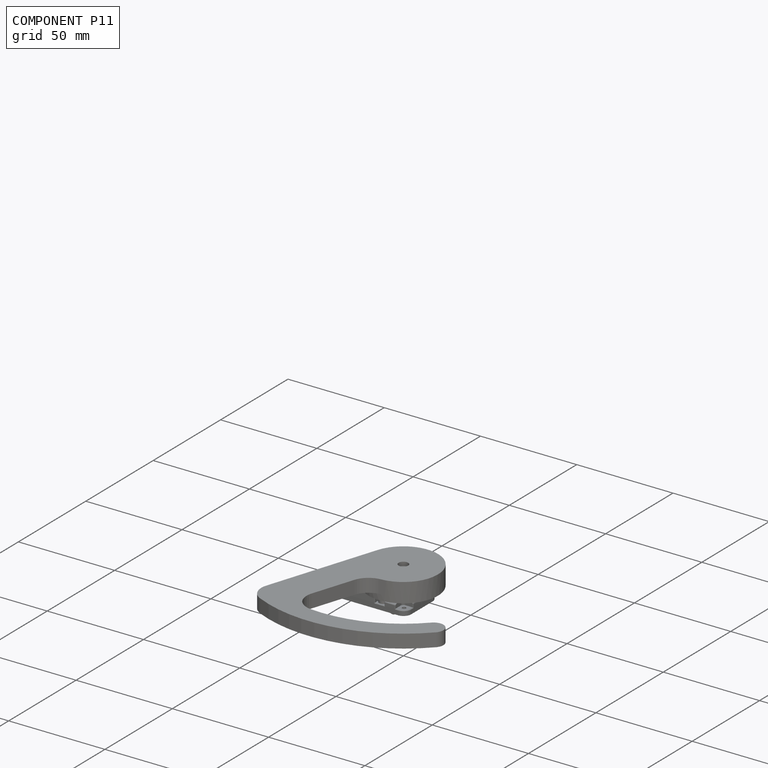
[diagram: component P11 — assembled]
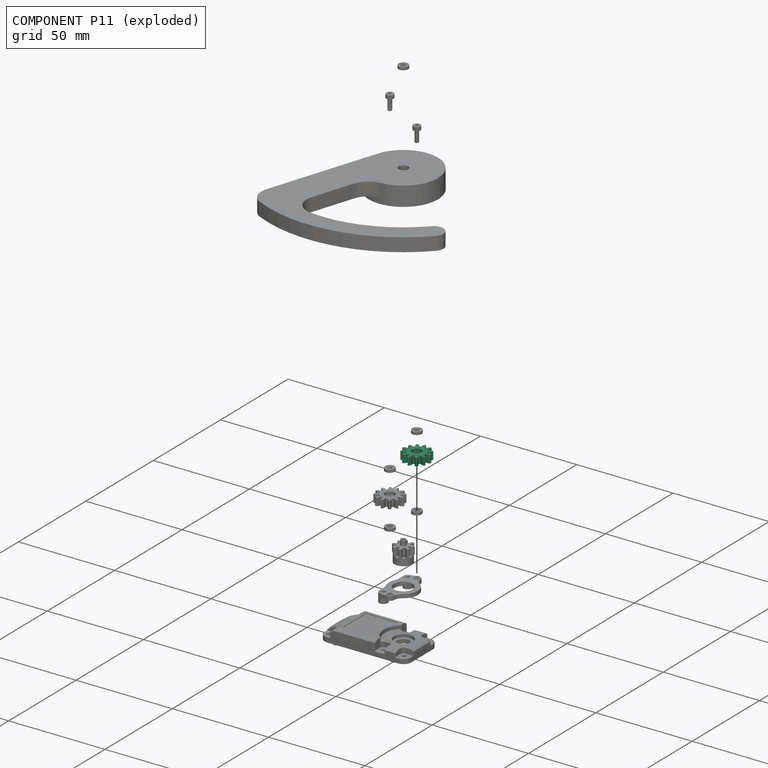
[diagram: component P11 — exploded]
COMPONENT P11 — same part as P5 (CADFS 00911097); its construction recipe is shown at P5.
Held by: FASTENED mate "Fastened 3" to P6; FASTENED mate "Fastened 4" to P9.
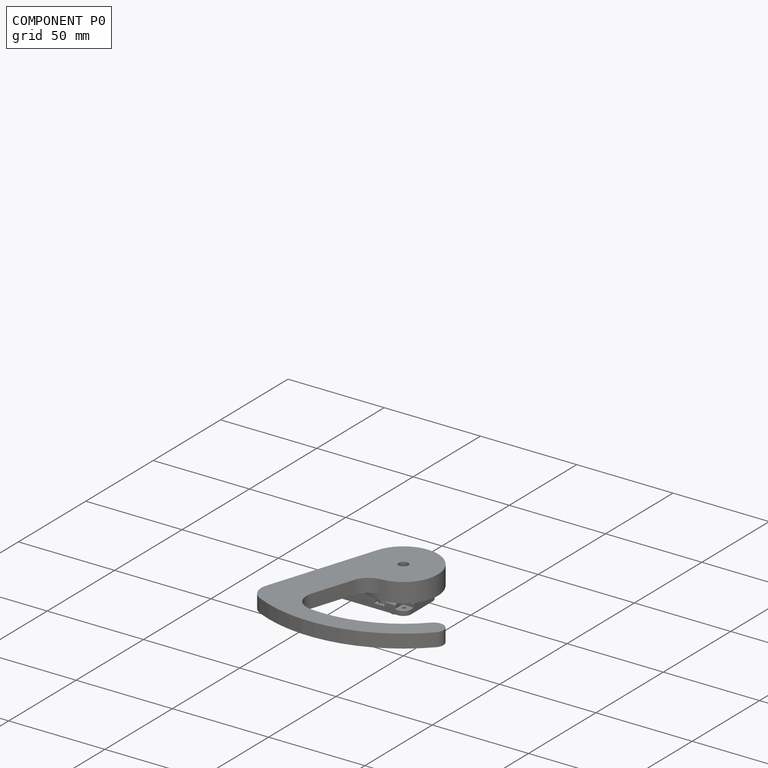
[diagram: component P0 — assembled]
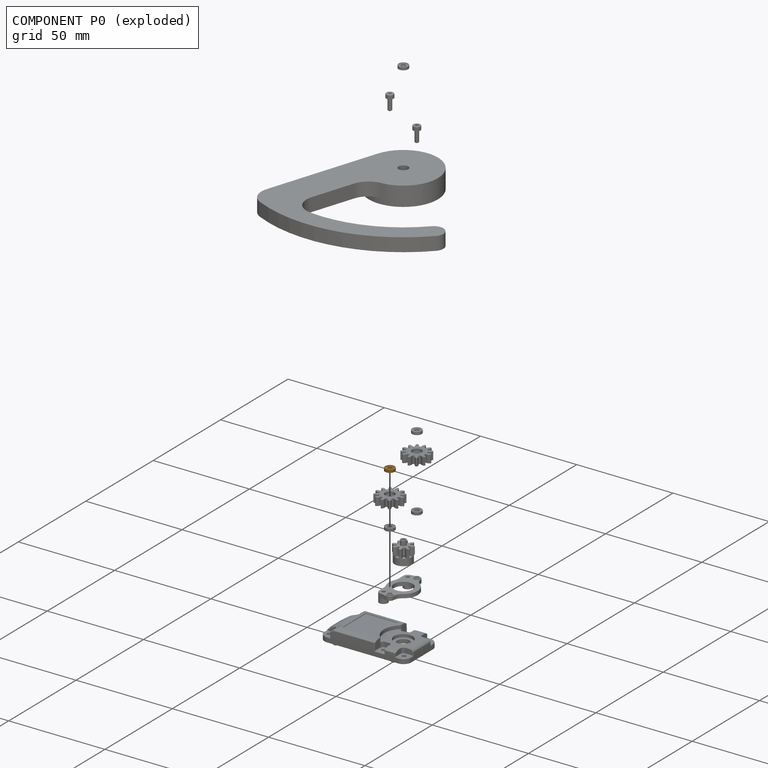
[diagram: component P0 — exploded]
COMPONENT P0 — geometry summary (no construction recipe available for this part):
  bounding box: 5.4 x 5.4 x 1.5 mm
  B-rep topology: 1 solid, 16 faces, 56 edges
  volume: 22 mm^3 (49% of its bounding box)
  symmetry: revolution-symmetric about the x axis through its bounding-box center; 2-fold rotationally symmetric about the y axis; 2-fold rotationally symmetric about the z axis; mirror-symmetric across its x mid-plane, y mid-plane, z mid-plane
Held by: FASTENED mate "Fastened 8" to P8; FASTENED mate "Fastened 6" to P5.
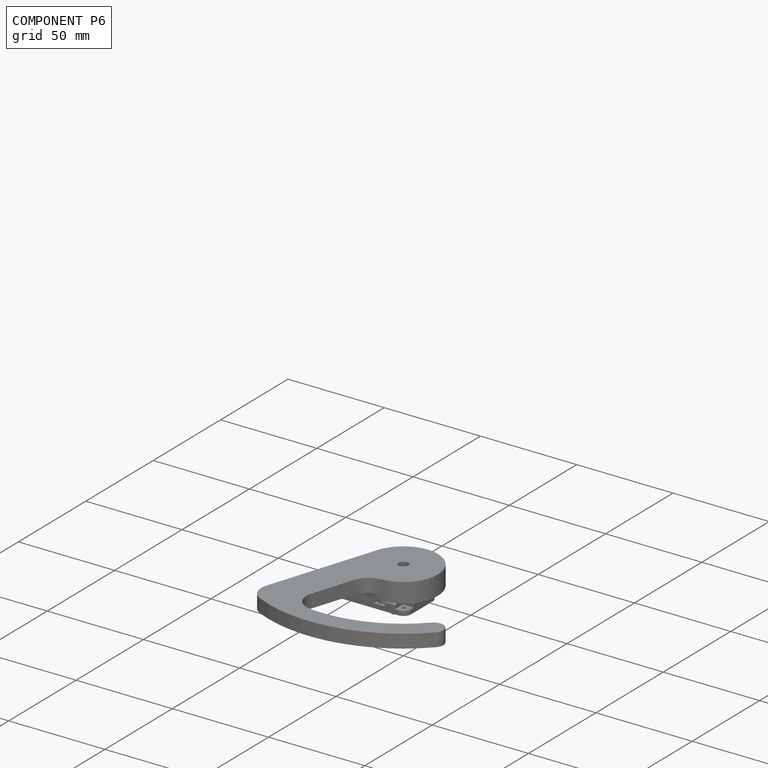
[diagram: component P6 — assembled]
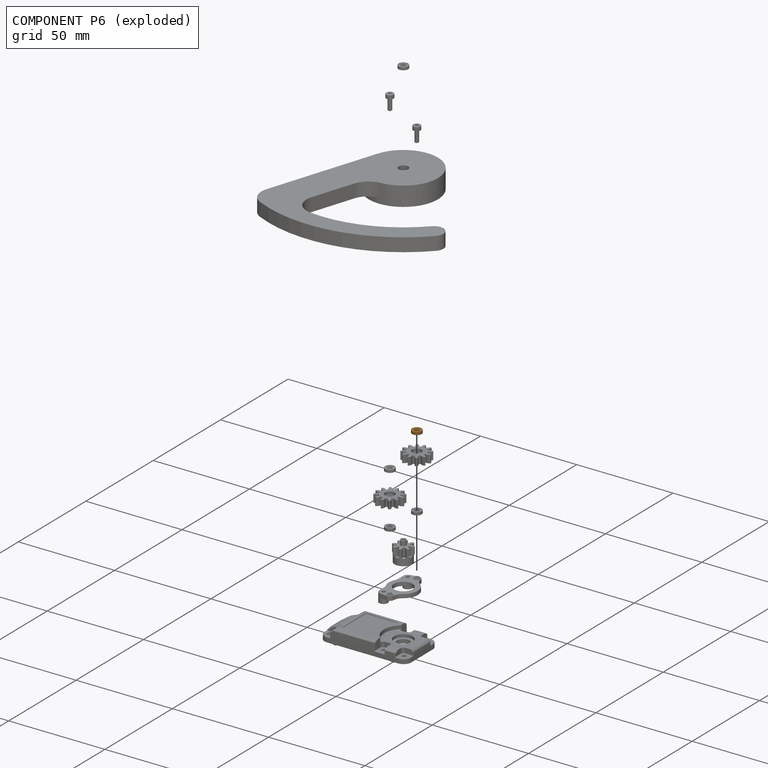
[diagram: component P6 — exploded]
COMPONENT P6 — geometry summary (no construction recipe available for this part):
  bounding box: 5.4 x 5.4 x 1.5 mm
  B-rep topology: 1 solid, 16 faces, 56 edges
  volume: 22 mm^3 (49% of its bounding box)
  symmetry: revolution-symmetric about the x axis through its bounding-box center; 2-fold rotationally symmetric about the y axis; 2-fold rotationally symmetric about the z axis; mirror-symmetric across its x mid-plane, y mid-plane, z mid-plane
Held by: FASTENED mate "Fastened 3" to P11; FASTENED mate "Fastened 7" to P7.
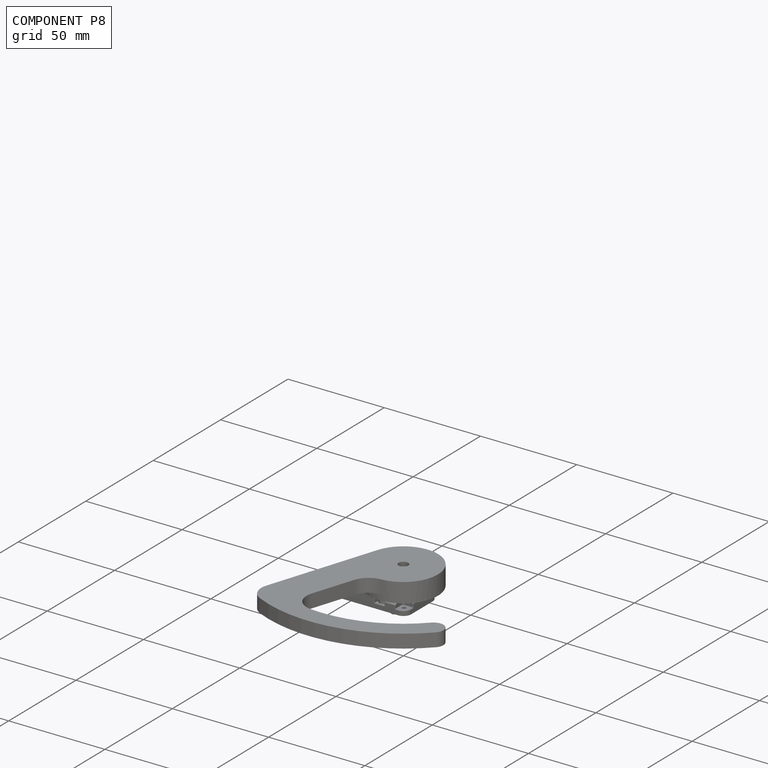
[diagram: component P8 — assembled]
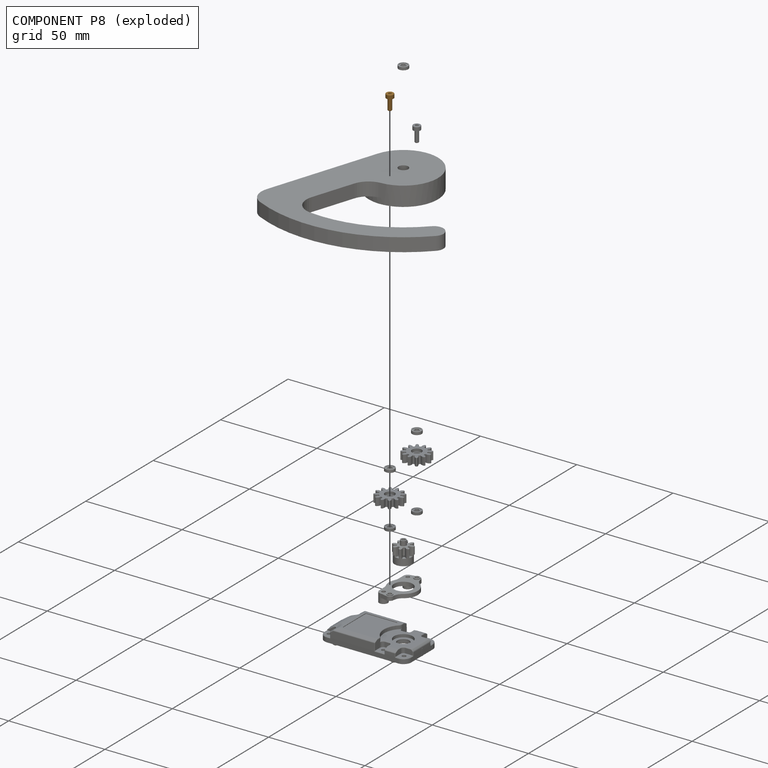
[diagram: component P8 — exploded]
COMPONENT P8 — geometry summary (no construction recipe available for this part):
  bounding box: 8.0 x 4.1 x 4.1 mm
  B-rep topology: 1 solid, 14 faces, 61 edges
  volume: 39 mm^3 (29% of its bounding box)
  symmetry: 6-fold rotationally symmetric about the z axis; mirror-symmetric across its x mid-plane, y mid-plane
Held by: FASTENED mate "Fastened 8" to P0.
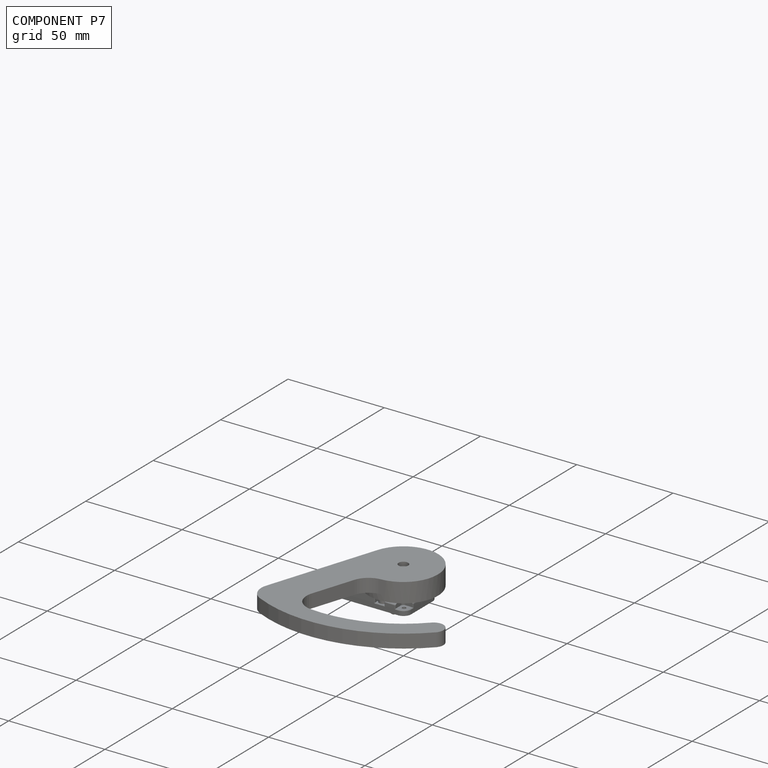
[diagram: component P7 — assembled]
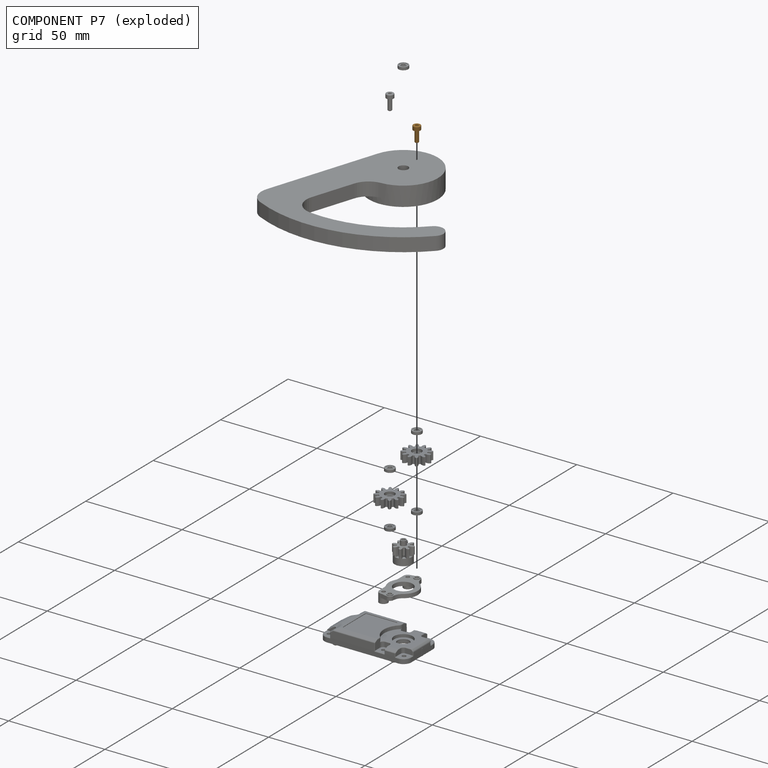
[diagram: component P7 — exploded]
COMPONENT P7 — geometry summary (no construction recipe available for this part):
  bounding box: 8.0 x 4.1 x 4.1 mm
  B-rep topology: 1 solid, 14 faces, 61 edges
  volume: 39 mm^3 (29% of its bounding box)
  symmetry: 6-fold rotationally symmetric about the z axis; mirror-symmetric across its x mid-plane, y mid-plane
Held by: FASTENED mate "Fastened 7" to P6.
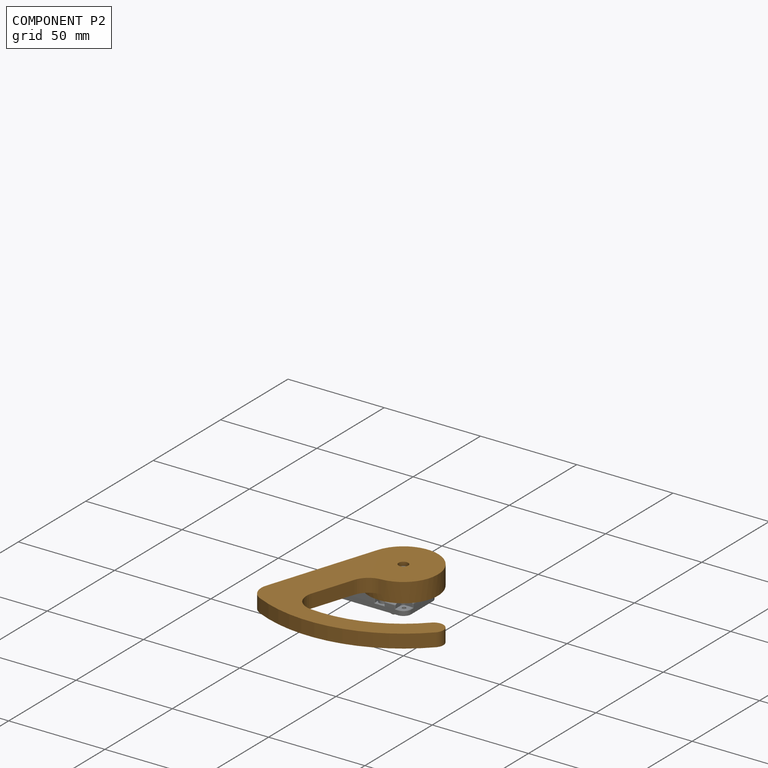
[diagram: component P2 — assembled]
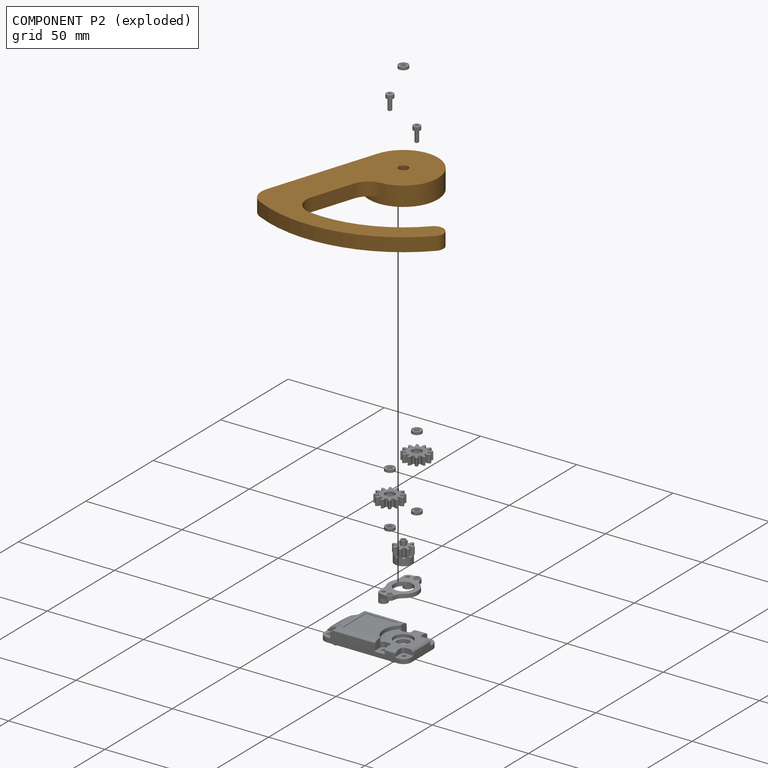
[diagram: component P2 — exploded]
COMPONENT P2 — geometry summary (no construction recipe available for this part):
  bounding box: 88.0 x 85.1 x 10.0 mm
  B-rep topology: 1 solid, 212 faces, 1238 edges
  volume: 16856 mm^3 (23% of its bounding box)
Held by: FASTENED mate "Fastened 9" to P12.
